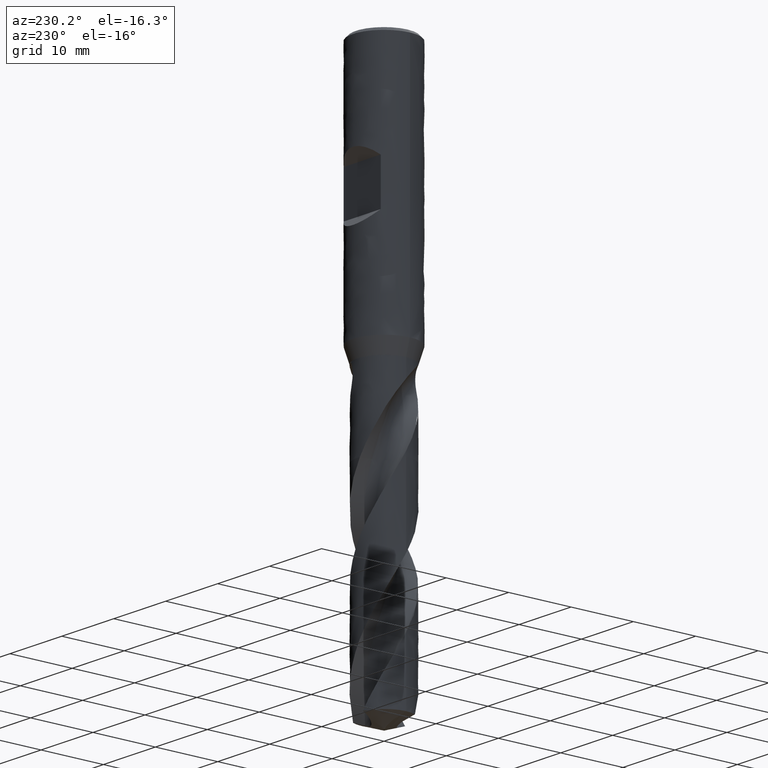
[diagram: clean part render]
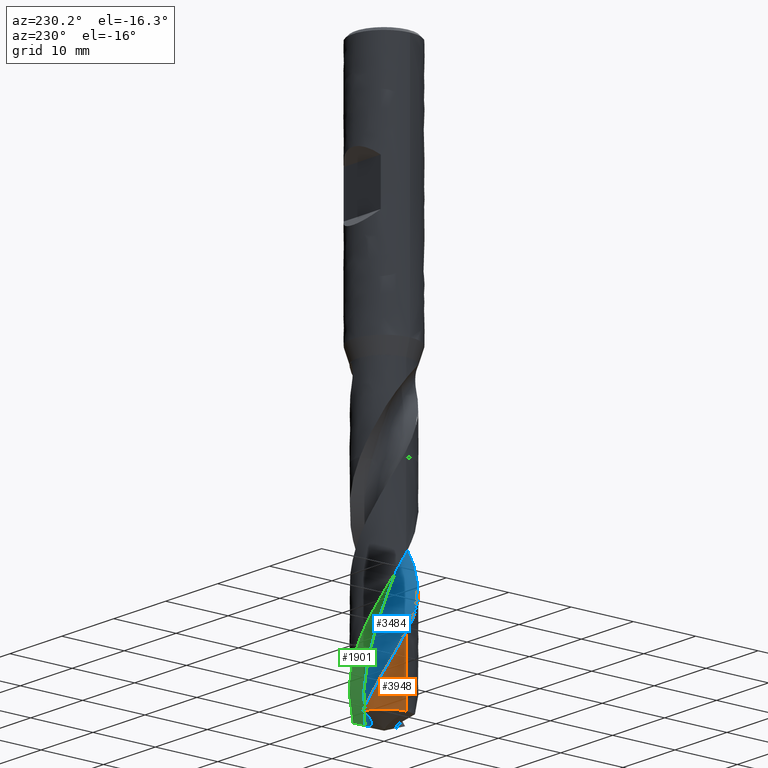
[diagram: same view with three faces highlighted in distinct colors, each labeled with its STEP entity id]
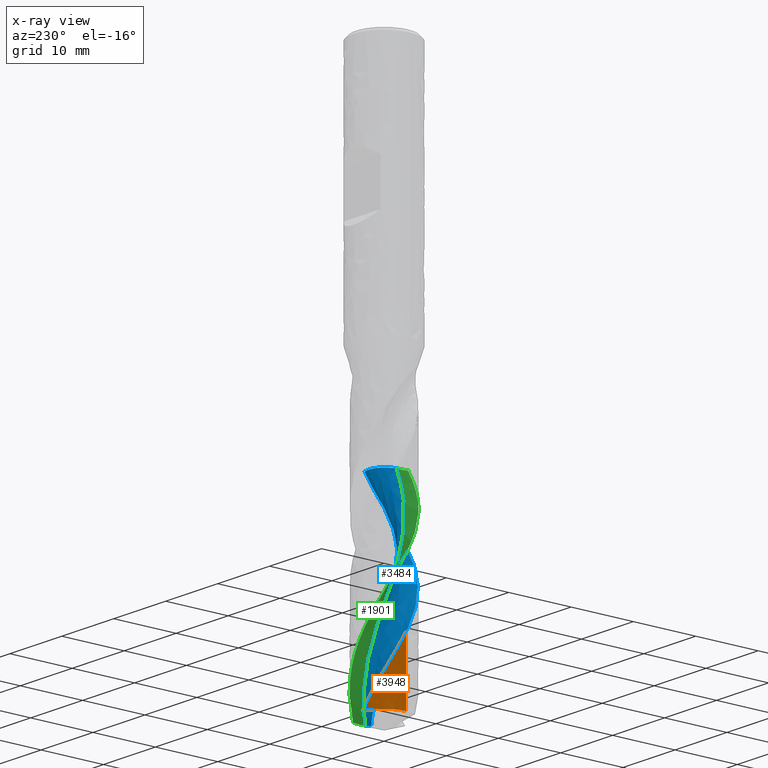
[diagram: x-ray of the same camera — body ghosted, the three highlighted faces saturated]
A machine part, auxiliary view with three faces highlighted in distinct colors.
The next image is the same camera in x-ray (body ghosted, the three faces saturated) — at least one of them is partly hidden behind the body in this view.
Their STEP definitions:

[orange] entity #3948 — the highlighted face is a freeform B-spline surface patch.
#3331 = VERTEX_POINT('', #3332);
#3332 = CARTESIAN_POINT('', (-4.25, 4.99455130866008E-15, -77.3172128835429));
#3450 = EDGE_CURVE('', #3331, #3451, #3453, .T.);
#3451 = VERTEX_POINT('', #3452);
#3452 = CARTESIAN_POINT('', (-4.25, 5.61519701726899E-15, -87.4531265043686));
#3453 = LINE('', #3454, #3455);
#3454 = CARTESIAN_POINT('', (-4.25, 4.99455130866008E-15, -77.3172128835429));
#3455 = VECTOR('', #3456, 10.1359136208257);
#3456 = DIRECTION('', (0., 6.20645708608913E-16, -10.1359136208257));
#3491 = VERTEX_POINT('', #3492);
#3492 = CARTESIAN_POINT('', (-0.912177127817301, 4.15095565954239, -87.4531265043686));
#3616 = EDGE_CURVE('', #3617, #3491, #3619, .T.);
#3617 = VERTEX_POINT('', #3618);
#3618 = CARTESIAN_POINT('', (-1.68817447602326, 3.90032908079609, -86.0117087814911));
#3619 = B_SPLINE_CURVE_WITH_KNOTS('', 3, (#3620, #3621, #3622, #3623, #3624, #3625, #3626), .UNSPECIFIED., .F., .U., (4, 3, 4), (0., 0.996006160757374, 1.65654599937346), .UNSPECIFIED.);
#3620 = CARTESIAN_POINT('', (-1.68817447602325, 3.90032908079609, -86.0117087814912));
#3621 = CARTESIAN_POINT('', (-1.53793721185733, 3.96535608478948, -86.3005437114992));
#3622 = CARTESIAN_POINT('', (-1.38389840683577, 4.021704904012, -86.5895093947658));
#3623 = CARTESIAN_POINT('', (-1.22720824319065, 4.06896300399069, -86.8783696173449));
#3624 = CARTESIAN_POINT('', (-1.1232931275169, 4.1003040327545, -87.06993839706));
#3625 = CARTESIAN_POINT('', (-1.01816796320345, 4.12766405545714, -87.2615471403853));
#3626 = CARTESIAN_POINT('', (-0.912177127817299, 4.15095565954239, -87.4531265043686));
#3920 = EDGE_CURVE('', #3451, #3491, #3921, .T.);
#3921 = CIRCLE('', #3922, 4.25);
#3922 = AXIS2_PLACEMENT_3D('', #3923, #3924, #3925);
#3923 = CARTESIAN_POINT('', (3.2789670499823E-31, 5.35495957245018E-15, -87.4531265043686));
#3924 = DIRECTION('', (3.74939945665464E-33, 6.12323399573677E-17, -1.));
#3925 = DIRECTION('', (-1., 6.12323399573677E-17, 0.));
#3948 = ADVANCED_FACE('', (#3949), #3997, .T.);
#3949 = FACE_OUTER_BOUND('', #3950, .T.);
#3950 = EDGE_LOOP('', (#3951, #3952, #3953, #3954));
#3951 = ORIENTED_EDGE('', *, *, #3616, .T.);
#3952 = ORIENTED_EDGE('', *, *, #3920, .F.);
#3953 = ORIENTED_EDGE('', *, *, #3450, .F.);
#3954 = ORIENTED_EDGE('', *, *, #3955, .F.);
#3955 = EDGE_CURVE('', #3617, #3331, #3956, .T.);
#3956 = B_SPLINE_CURVE_WITH_KNOTS('', 3, (#3957, #3958, #3959, #3960, #3961, #3962, #3963, #3964, #3965, #3966, #3967, #3968, #3969, #3970, #3971, #3972, #3973, #3974, #3975, #3976, #3977, #3978, #3979, #3980, #3981, #3982, #3983, #3984, #3985, #3986, #3987, #3988, #3989, #3990, #3991, #3992, #3993, #3994, #3995, #3996), .UNSPECIFIED., .F., .U., (4, 3, 3, 3, 3, 3, 3, 3, 3, 3, 3, 3, 3, 4), (0., 0.998659903054607, 1.99689896207611, 2.99472552698934, 3.9921447847736, 4.65698398979154, 5.32170237734091, 5.98629919378277, 6.65077379233985, 7.31512492226253, 7.97935056405163, 8.64344855789552, 9.30741659907499, 9.99890429718893), .UNSPECIFIED.);
#3957 = CARTESIAN_POINT('', (-1.68817447602326, 3.90032908079609, -86.0117087814911));
#3958 = CARTESIAN_POINT('', (-1.83881202986432, 3.83512881993165, -85.7221042844855));
#3959 = CARTESIAN_POINT('', (-1.98575424831955, 3.76114909687601, -85.432398242106));
#3960 = CARTESIAN_POINT('', (-2.12789319615086, 3.678936061659, -85.1428277883651));
#3961 = CARTESIAN_POINT('', (-2.26997224538418, 3.59675767173536, -84.8533793621505));
#3962 = CARTESIAN_POINT('', (-2.40736685873886, 3.50628638527111, -84.5638299577612));
#3963 = CARTESIAN_POINT('', (-2.53903798477229, 3.4081939662941, -84.2744155017506));
#3964 = CARTESIAN_POINT('', (-2.67065470143031, 3.31014208123983, -83.985120638093));
#3965 = CARTESIAN_POINT('', (-2.79666063343277, 3.20439481896463, -83.6957252441271));
#3966 = CARTESIAN_POINT('', (-2.91610033257251, 3.09174042415765, -83.4064644690378));
#3967 = CARTESIAN_POINT('', (-3.03549127710635, 2.97913201423393, -83.1173217685518));
#3968 = CARTESIAN_POINT('', (-3.14841985687086, 2.85952915796414, -82.8280785540291));
#3969 = CARTESIAN_POINT('', (-3.25402820914732, 2.73382523473493, -82.5389700061085));
#3970 = CARTESIAN_POINT('', (-3.32442245151107, 2.65003610019085, -82.3462619792047));
#3971 = CARTESIAN_POINT('', (-3.39159997638837, 2.56349983916613, -82.1535270116002));
#3972 = CARTESIAN_POINT('', (-3.45533248057268, 2.47450549579093, -81.9608341813849));
#3973 = CARTESIAN_POINT('', (-3.51905340300945, 2.38552732485441, -81.7681763681478));
#3974 = CARTESIAN_POINT('', (-3.57935412514693, 2.29405916341818, -81.575490948774));
#3975 = CARTESIAN_POINT('', (-3.63603070417466, 2.2004046714864, -81.3828485199287));
#3976 = CARTESIAN_POINT('', (-3.6926969175579, 2.10676730813195, -81.190241323678));
#3977 = CARTESIAN_POINT('', (-3.7457600933932, 2.01091175963836, -80.9976060777511));
#3978 = CARTESIAN_POINT('', (-3.79504075356635, 1.91315594732123, -80.8050138523268));
#3979 = CARTESIAN_POINT('', (-3.84431235113507, 1.81541811208179, -80.612457044187));
#3980 = CARTESIAN_POINT('', (-3.88982049514964, 1.71574550177768, -80.4198728691477));
#3981 = CARTESIAN_POINT('', (-3.93140969567772, 1.61447137005624, -80.2273309574277));
#3982 = CARTESIAN_POINT('', (-3.97299116835313, 1.51321605647889, -80.0348248226764));
#3983 = CARTESIAN_POINT('', (-4.01067082072844, 1.41032162962647, -79.842291594427));
#3984 = CARTESIAN_POINT('', (-4.04431913140946, 1.30613275103088, -79.649800716514));
#3985 = CARTESIAN_POINT('', (-4.0779610863194, 1.201963552492, -79.4573461978694));
#3986 = CARTESIAN_POINT('', (-4.10758551477272, 1.09646254212485, -79.2648637929053));
#3987 = CARTESIAN_POINT('', (-4.13309060879929, 0.989980817720881, -79.0724245106685));
#3988 = CARTESIAN_POINT('', (-4.15859080136973, 0.883519556503621, -78.8800222105617));
#3989 = CARTESIAN_POINT('', (-4.17998215189508, 0.77604071938358, -78.6875919030559));
#3990 = CARTESIAN_POINT('', (-4.19719027625448, 0.667902526507583, -78.495204489889));
#3991 = CARTESIAN_POINT('', (-4.21439503327708, 0.55978549443379, -78.3028547236615));
#3992 = CARTESIAN_POINT('', (-4.2274244198973, 0.450969844690453, -78.1104776627323));
#3993 = CARTESIAN_POINT('', (-4.23623162391577, 0.341821047533054, -77.9181427930573));
#3994 = CARTESIAN_POINT('', (-4.24540386242101, 0.228148331653231, -77.7178361697711));
#3995 = CARTESIAN_POINT('', (-4.25, 0.114071220751721, -77.5175029637346));
#3996 = CARTESIAN_POINT('', (-4.25, 2.48961060934957E-15, -77.3172128835429));
#3997 = (
   BOUNDED_SURFACE ()
   B_SPLINE_SURFACE (2, 1, ((#3998, #3999), (#4000, #4001), (#4002, #4003)), .UNSPECIFIED., .F., .F., .U.)
   B_SPLINE_SURFACE_WITH_KNOTS ((3, 3), (2, 2), (0., 5.69488613545001), (0.777002939064016, 1.), .UNSPECIFIED.)
   GEOMETRIC_REPRESENTATION_ITEM ()
   RATIONAL_B_SPLINE_SURFACE (((1., 1.), (0.750146432468655, 0.750146432468655), (0.926569754931822, 0.926569754931822)))
   REPRESENTATION_ITEM ('')
   SURFACE ()
);
#3998 = CARTESIAN_POINT('', (-4.25, 4.99455130866008E-15, -77.3172128835429));
#3999 = CARTESIAN_POINT('', (-4.25, 5.61519701726899E-15, -87.4531265043686));
#4000 = CARTESIAN_POINT('', (-4.25, 3.41746536708137, -77.3172128835429));
#4001 = CARTESIAN_POINT('', (-4.25, 3.41746536708137, -87.4531265043686));
#4002 = CARTESIAN_POINT('', (-0.912177127817299, 4.15095565954239, -77.3172128835429));
#4003 = CARTESIAN_POINT('', (-0.912177127817299, 4.15095565954239, -87.4531265043686));

[blue] entity #3484 — the highlighted face is a freeform B-spline surface patch.
#1848 = VERTEX_POINT('', #1849);
#1849 = CARTESIAN_POINT('', (0.609771048206674, -2.47031927261728, -54.75));
#1855 = EDGE_CURVE('', #1848, #1856, #1858, .T.);
#1856 = VERTEX_POINT('', #1857);
#1857 = CARTESIAN_POINT('', (4.22936375687884, -0.418308751999922, -54.75));
#1858 = CIRCLE('', #1859, 2.55009796873265);
#1859 = AXIS2_PLACEMENT_3D('', #1860, #1861, #1862);
#1860 = CARTESIAN_POINT('', (3.1468918195684, -2.72726048029877, -54.75));
#1861 = DIRECTION('', (0., 0., -1.));
#1862 = DIRECTION('', (-0.994911026401606, 0.1007573796032, 0.));
#2108 = VERTEX_POINT('', #2109);
#2109 = CARTESIAN_POINT('', (2.26380303835024, 1.16182508416147, -88.0738661903019));
#2140 = EDGE_CURVE('', #2108, #1848, #2141, .T.);
#2141 = (
   BOUNDED_CURVE ()
   B_SPLINE_CURVE (3, (#2142, #2143, #2144, #2145, #2146, #2147, #2148, #2149, #2150, #2151, #2152, #2153, #2154, #2155, #2156, #2157, #2158, #2159, #2160, #2161, #2162, #2163, #2164, #2165, #2166, #2167, #2168, #2169, #2170, #2171, #2172, #2173, #2174, #2175, #2176, #2177, #2178, #2179, #2180, #2181, #2182, #2183, #2184, #2185, #2186, #2187), .UNSPECIFIED., .F., .U.)
   B_SPLINE_CURVE_WITH_KNOTS ((4, 1, 1, 1, 1, 1, 1, 1, 1, 1, 1, 1, 1, 1, 1, 1, 1, 1, 1, 1, 1, 1, 1, 1, 1, 1, 1, 1, 1, 1, 1, 1, 1, 1, 1, 1, 1, 1, 1, 1, 1, 1, 1, 4), (0.97613380969807, 1.569, 2.3535, 3.138, 3.9225, 4.707, 5.4915, 6.276, 7.0605, 7.845, 8.6295, 9.414, 10.1985, 10.983, 11.7675, 12.552, 13.3365, 14.121, 14.9055, 15.69, 16.4745, 17.259, 18.0435, 18.828, 19.6125, 20.397, 21.1815, 21.966, 22.7505, 23.535, 24.3195, 25.104, 25.8885, 26.673, 27.4575, 28.242, 29.0265, 29.811, 30.5955, 31.38, 32.1645, 32.949, 33.7335, 34.3), .UNSPECIFIED.)
   CURVE ()
   GEOMETRIC_REPRESENTATION_ITEM ()
   RATIONAL_B_SPLINE_CURVE ((1., 1., 1., 1., 1., 1., 1., 1., 1., 1., 1., 1., 1., 1., 1., 1., 1., 1., 1., 1., 1., 1., 1., 1., 1., 1., 1., 1., 1., 1., 1., 1., 1., 1., 1., 1., 1., 1., 1., 1., 1., 1., 1., 1., 1., 1.))
   REPRESENTATION_ITEM ('')
);
#2142 = CARTESIAN_POINT('', (2.26380303835024, 1.16182508416147, -88.0738661903019));
#2143 = CARTESIAN_POINT('', (2.23142068961664, 1.22119587362534, -87.8762441268679));
#2144 = CARTESIAN_POINT('', (2.1508328886185, 1.35602633175028, -87.417122063434));
#2145 = CARTESIAN_POINT('', (2.00574545727001, 1.55484478241772, -86.6965));
#2146 = CARTESIAN_POINT('', (1.82655988965839, 1.75317164876887, -85.912));
#2147 = CARTESIAN_POINT('', (1.62816066058167, 1.93134024572589, -85.1275));
#2148 = CARTESIAN_POINT('', (1.41276738776557, 2.08753245917842, -84.343));
#2149 = CARTESIAN_POINT('', (1.1827659386154, 2.22016851800745, -83.5585));
#2150 = CARTESIAN_POINT('', (0.940684822806402, 2.32792293648548, -82.774));
#2151 = CARTESIAN_POINT('', (0.689168234466099, 2.40973655363446, -81.9895));
#2152 = CARTESIAN_POINT('', (0.430948643944997, 2.46482621022016, -81.205));
#2153 = CARTESIAN_POINT('', (0.168818502844098, 2.49269154773007, -80.4205));
#2154 = CARTESIAN_POINT('', (-0.0943984732778758, 2.49311899778279, -79.636));
#2155 = CARTESIAN_POINT('', (-0.355876217767335, 2.46618290732512, -78.8515));
#2156 = CARTESIAN_POINT('', (-0.612815130287352, 2.41224381140495, -78.067));
#2157 = CARTESIAN_POINT('', (-0.862470527458267, 2.33194388071674, -77.2825));
#2158 = CARTESIAN_POINT('', (-1.10218045562416, 2.22619959968889, -76.498));
#2159 = CARTESIAN_POINT('', (-1.32939260302138, 2.09619175516202, -75.7135));
#2160 = CARTESIAN_POINT('', (-1.54169005766552, 1.94335284012039, -74.929));
#2161 = CARTESIAN_POINT('', (-1.73681566887196, 1.76935200006063, -74.1445));
#2162 = CARTESIAN_POINT('', (-1.91269478384159, 1.57607767156672, -73.36));
#2163 = CARTESIAN_POINT('', (-2.06745614620208, 1.36561808325012, -72.5755));
#2164 = CARTESIAN_POINT('', (-2.19945076062397, 1.14023980827892, -71.791));
#2165 = CARTESIAN_POINT('', (-2.30726854649714, 0.902364575106401, -71.0065));
#2166 = CARTESIAN_POINT('', (-2.38975262399918, 0.654544558588787, -70.222));
#2167 = CARTESIAN_POINT('', (-2.44601109754957, 0.399436387335004, -69.4375));
#2168 = CARTESIAN_POINT('', (-2.475426224449, 0.139774114751448, -68.653));
#2169 = CARTESIAN_POINT('', (-2.47766088027157, -0.121658589256765, -67.8685));
#2170 = CARTESIAN_POINT('', (-2.45266225712104, -0.382056761667237, -67.084));
#2171 = CARTESIAN_POINT('', (-2.40066275598801, -0.638622715504346, -66.2995));
#2172 = CARTESIAN_POINT('', (-2.32217805995706, -0.888594582748882, -65.515));
#2173 = CARTESIAN_POINT('', (-2.2180024007019, -1.12927455856321, -64.7305));
#2174 = CARTESIAN_POINT('', (-2.08920105640166, -1.35805657632008, -63.946));
#2175 = CARTESIAN_POINT('', (-1.93710014458426, -1.57245314731946, -63.1615));
#2176 = CARTESIAN_POINT('', (-1.76327379870978, -1.77012110529847, -62.377));
#2177 = CARTESIAN_POINT('', (-1.56952884062256, -1.94888600620909, -61.5925));
#2178 = CARTESIAN_POINT('', (-1.35788708854661, -2.10676493939415, -60.808));
#2179 = CARTESIAN_POINT('', (-1.13056544790707, -2.24198754003368, -60.0235));
#2180 = CARTESIAN_POINT('', (-0.889954009195336, -2.35301493180614, -59.239));
#2181 = CARTESIAN_POINT('', (-0.638592189307602, -2.43855663080162, -58.4545));
#2182 = CARTESIAN_POINT('', (-0.379143746090853, -2.49758439821549, -57.67));
#2183 = CARTESIAN_POINT('', (-0.114368619942707, -2.52934601630863, -56.8855));
#2184 = CARTESIAN_POINT('', (0.152899634467705, -2.53336718308083, -56.101));
#2185 = CARTESIAN_POINT('', (0.395079673093268, -2.51169714520767, -55.3891666666667));
#2186 = CARTESIAN_POINT('', (0.54666408360814, -2.48422088340201, -54.9388333333333));
#2187 = CARTESIAN_POINT('', (0.609771048206675, -2.47031927261728, -54.75));
#3312 = EDGE_CURVE('', #1856, #3313, #3315, .T.);
#3313 = VERTEX_POINT('', #3314);
#3314 = CARTESIAN_POINT('', (3.95116373576819, -1.56550475347421, -56.8051964234721));
#3315 = B_SPLINE_CURVE_WITH_KNOTS('', 3, (#3316, #3317, #3318, #3319, #3320, #3321, #3322, #3323, #3324, #3325, #3326, #3327, #3328), .UNSPECIFIED., .F., .U., (4, 3, 3, 3, 4), (5.11753710972845, 5.64862569538437, 6.31465294935768, 6.98053721695193, 7.48938595604523), .UNSPECIFIED.);
#3316 = CARTESIAN_POINT('', (4.22936375687884, -0.418308751999922, -54.75));
#3317 = CARTESIAN_POINT('', (4.22066137040157, -0.506295335568461, -54.9033691088873));
#3318 = CARTESIAN_POINT('', (4.2092112570088, -0.594015733908753, -55.0567787316896));
#3319 = CARTESIAN_POINT('', (4.19504125936249, -0.681270014197829, -55.2101585077921));
#3320 = CARTESIAN_POINT('', (4.1772709572395, -0.790693809526772, -55.4025089251269));
#3321 = CARTESIAN_POINT('', (4.15521324597634, -0.899438504136208, -55.5948984064115));
#3322 = CARTESIAN_POINT('', (4.12894605614196, -1.00712683683285, -55.7872556038589));
#3323 = CARTESIAN_POINT('', (4.10268450549179, -1.11479205040837, -55.9795715050095));
#3324 = CARTESIAN_POINT('', (4.07220562135653, -1.22144111355231, -56.1719291513775));
#3325 = CARTESIAN_POINT('', (4.03761709090543, -1.32670578020446, -56.3642566236949));
#3326 = CARTESIAN_POINT('', (4.01118557575532, -1.40714587393207, -56.511227496179));
#3327 = CARTESIAN_POINT('', (3.98234823304885, -1.48679847391802, -56.6582184668987));
#3328 = CARTESIAN_POINT('', (3.95116373576817, -1.56550475347425, -56.8051964234722));
#3484 = ADVANCED_FACE('', (#3485), #3673, .T.);
#3485 = FACE_OUTER_BOUND('', #3486, .T.);
#3486 = EDGE_LOOP('', (#3487, #3488, #3489, #3615, #3627, #3672));
#3487 = ORIENTED_EDGE('', *, *, #1855, .F.);
#3488 = ORIENTED_EDGE('', *, *, #2140, .F.);
#3489 = ORIENTED_EDGE('', *, *, #3490, .T.);
#3490 = EDGE_CURVE('', #2108, #3491, #3493, .T.);
#3491 = VERTEX_POINT('', #3492);
#3492 = CARTESIAN_POINT('', (-0.912177127817301, 4.15095565954239, -87.4531265043686));
#3493 = B_SPLINE_CURVE_WITH_KNOTS('', 3, (#3494, #3495, #3496, #3497, #3498, #3499, #3500, #3501, #3502, #3503, #3504, #3505, #3506, #3507, #3508, #3509, #3510, #3511, #3512, #3513, #3514, #3515, #3516, #3517, #3518, #3519, #3520, #3521, #3522, #3523, #3524, #3525, #3526, #3527, #3528, #3529, #3530, #3531, #3532, #3533, #3534, #3535, #3536, #3537, #3538, #3539, #3540, #3541, #3542, #3543, #3544, #3545, #3546, #3547, #3548, #3549, #3550, #3551, #3552, #3553, #3554, #3555, #3556, #3557, #3558, #3559, #3560, #3561, #3562, #3563, #3564, #3565, #3566, #3567, #3568, #3569, #3570, #3571, #3572, #3573, #3574, #3575, #3576, #3577, #3578, #3579, #3580, #3581, #3582, #3583, #3584, #3585, #3586, #3587, #3588, #3589, #3590, #3591, #3592, #3593, #3594, #3595, #3596, #3597, #3598, #3599, #3600, #3601, #3602, #3603, #3604, #3605, #3606, #3607, #3608, #3609, #3610, #3611, #3612, #3613, #3614), .UNSPECIFIED., .F., .U., (4, 3, 3, 3, 3, 3, 3, 3, 3, 3, 3, 3, 3, 3, 3, 3, 3, 3, 3, 3, 3, 3, 3, 3, 3, 3, 3, 3, 3, 3, 3, 3, 3, 3, 3, 3, 3, 3, 3, 3, 4), (0., 0.197366025399321, 0.394449027620821, 0.525647714904353, 0.656700994513001, 0.787594218033577, 0.918326714190029, 1.04891924890005, 1.13611810537001, 1.22330766687048, 1.3105042797026, 1.39772468510196, 1.48498398464566, 1.57229369632771, 1.65966037729865, 1.74708513791573, 1.83456409160007, 1.92208951074192, 2.0096513106843, 2.14101325832229, 2.2724181064271, 2.40382091581938, 2.46221249323579, 2.48816889858686, 2.62018432272414, 2.65917347359251, 2.79150483025303, 2.9236328653396, 3.0555854902682, 3.1873870617791, 3.31905827162439, 3.45061640190552, 3.64785589306713, 3.84481359675958, 4.04153240847809, 4.23804343437635, 4.43436884298918, 4.63052395768663, 4.82651875750547, 5.02235893031434, 5.07117728515767), .UNSPECIFIED.);
#3494 = CARTESIAN_POINT('', (2.26380303835024, 1.16182508416148, -88.0738661903019));
#3495 = CARTESIAN_POINT('', (2.20364025956441, 1.14680592418442, -88.095843784759));
#3496 = CARTESIAN_POINT('', (2.14256045724465, 1.13476713195632, -88.1175842762805));
#3497 = CARTESIAN_POINT('', (2.0809403069956, 1.12588304156369, -88.1388487959541));
#3498 = CARTESIAN_POINT('', (2.01940852013486, 1.11701169097007, -88.1600828222745));
#3499 = CARTESIAN_POINT('', (1.95719004215308, 1.11126592512355, -88.1808939345037));
#3500 = CARTESIAN_POINT('', (1.89469287023404, 1.1087734310825, -88.2009846414345));
#3501 = CARTESIAN_POINT('', (1.85308833396107, 1.1071141710623, -88.2143590793425));
#3502 = CARTESIAN_POINT('', (1.81130206306737, 1.10689241236628, -88.2274321202993));
#3503 = CARTESIAN_POINT('', (1.76946220325849, 1.1081305512607, -88.2400993739444));
#3504 = CARTESIAN_POINT('', (1.72766871462038, 1.10936731792418, -88.2527525884559));
#3505 = CARTESIAN_POINT('', (1.6857717267647, 1.1120625093951, -88.2650159806266));
#3506 = CARTESIAN_POINT('', (1.64390508044746, 1.11622261818504, -88.2767721085096));
#3507 = CARTESIAN_POINT('', (1.60208956609463, 1.12037764621134, -88.2885138785692));
#3508 = CARTESIAN_POINT('', (1.56025190195305, 1.12599955715365, -88.2997640845704));
#3509 = CARTESIAN_POINT('', (1.51853133966271, 1.13307497189404, -88.3103944115198));
#3510 = CARTESIAN_POINT('', (1.47686200719028, 1.14014169853941, -88.3210116852005));
#3511 = CARTESIAN_POINT('', (1.43525490362908, 1.14866797737316, -88.3310240033849));
#3512 = CARTESIAN_POINT('', (1.39385399005691, 1.15861605787251, -88.3402975380054));
#3513 = CARTESIAN_POINT('', (1.35249740006088, 1.16855348801501, -88.3495611444338));
#3514 = CARTESIAN_POINT('', (1.3112902645507, 1.17992351934458, -88.3580993719568));
#3515 = CARTESIAN_POINT('', (1.27037947431074, 1.19265981648163, -88.3657823684541));
#3516 = CARTESIAN_POINT('', (1.2430626438799, 1.20116405869179, -88.3709124358834));
#3517 = CARTESIAN_POINT('', (1.21585660453625, 1.21028324324796, -88.3756654152435));
#3518 = CARTESIAN_POINT('', (1.18880509477072, 1.21998990858315, -88.3800065463935));
#3519 = CARTESIAN_POINT('', (1.16175646856317, 1.22969553923552, -88.3843472148003));
#3520 = CARTESIAN_POINT('', (1.13484521771277, 1.23999466663396, -88.3882787364174));
#3521 = CARTESIAN_POINT('', (1.10811419649058, 1.25085374087682, -88.3917718524047));
#3522 = CARTESIAN_POINT('', (1.0813810134351, 1.26171369333185, -88.3952652508927));
#3523 = CARTESIAN_POINT('', (1.054811192221, 1.27314051441188, -88.3983222651653));
#3524 = CARTESIAN_POINT('', (1.02844572310687, 1.28509515695409, -88.4009211181199));
#3525 = CARTESIAN_POINT('', (1.00207305988076, 1.2970530614537, -88.4035206802004));
#3526 = CARTESIAN_POINT('', (0.975888445213804, 1.30954645245562, -88.4056633729035));
#3527 = CARTESIAN_POINT('', (0.949929913660226, 1.32253190375399, -88.4073364726702));
#3528 = CARTESIAN_POINT('', (0.923959806433863, 1.33552314564706, -88.4090103185213));
#3529 = CARTESIAN_POINT('', (0.898200321957909, 1.34901462593837, -88.4102151423743));
#3530 = CARTESIAN_POINT('', (0.872685490566781, 1.36296011613003, -88.4109481346001));
#3531 = CARTESIAN_POINT('', (0.847155918543801, 1.37691366302148, -88.4116815502961));
#3532 = CARTESIAN_POINT('', (0.82185662857401, 1.39132963781636, -88.411943053111));
#3533 = CARTESIAN_POINT('', (0.796816821709417, 1.40616085968333, -88.4117397129329));
#3534 = CARTESIAN_POINT('', (0.771760676456307, 1.42100175887195, -88.411536240076));
#3535 = CARTESIAN_POINT('', (0.746950915801598, 1.43626628274943, -88.4108673075532));
#3536 = CARTESIAN_POINT('', (0.722411458213135, 1.45190816177703, -88.4097489397135));
#3537 = CARTESIAN_POINT('', (0.697855687277324, 1.46756043921727, -88.4086298284049));
#3538 = CARTESIAN_POINT('', (0.67355849526038, 1.48359815844171, -88.4070602715032));
#3539 = CARTESIAN_POINT('', (0.649538503031792, 1.49997758021663, -88.4050636240389));
#3540 = CARTESIAN_POINT('', (0.625503621233644, 1.51636715530624, -88.4030657388879));
#3541 = CARTESIAN_POINT('', (0.601735607045788, 1.5331060353792, -88.4006395010137));
#3542 = CARTESIAN_POINT('', (0.578248174791807, 1.55015420192174, -88.3978135846318));
#3543 = CARTESIAN_POINT('', (0.55474826691667, 1.56721142379502, -88.3949861672317));
#3544 = CARTESIAN_POINT('', (0.53151994522714, 1.58458492739665, -88.3917576793495));
#3545 = CARTESIAN_POINT('', (0.508572705322358, 1.60223910485033, -88.3881600444994));
#3546 = CARTESIAN_POINT('', (0.485615927171819, 1.61990062043634, -88.384560914257));
#3547 = CARTESIAN_POINT('', (0.46293246252325, 1.63784914346505, -88.3805912075343));
#3548 = CARTESIAN_POINT('', (0.440528430709032, 1.65605369920135, -88.3762842314185));
#3549 = CARTESIAN_POINT('', (0.406917458161689, 1.68336453450829, -88.3698228204909));
#3550 = CARTESIAN_POINT('', (0.373917146746479, 1.71126591258139, -88.3625990693212));
#3551 = CARTESIAN_POINT('', (0.341538057356757, 1.73967204263021, -88.3547240850128));
#3552 = CARTESIAN_POINT('', (0.309148393534526, 1.76808744961396, -88.3468465288751));
#3553 = CARTESIAN_POINT('', (0.27736191093297, 1.79702403538555, -88.338313312318));
#3554 = CARTESIAN_POINT('', (0.24618219389214, 1.82641545402602, -88.3292275364663));
#3555 = CARTESIAN_POINT('', (0.215002960596622, 1.85580641666616, -88.3201419015782));
#3556 = CARTESIAN_POINT('', (0.184415832277956, 1.8856660233077, -88.3104996888499));
#3557 = CARTESIAN_POINT('', (0.154421668277751, 1.91594329872284, -88.3003923274486));
#3558 = CARTESIAN_POINT('', (0.141093136282442, 1.92939763717676, -88.2959009107242));
#3559 = CARTESIAN_POINT('', (0.127879946903131, 1.94293634183751, -88.2913169177426));
#3560 = CARTESIAN_POINT('', (0.114782156422942, 1.95655570062862, -88.2866475748305));
#3561 = CARTESIAN_POINT('', (0.108959885918368, 1.96260982029871, -88.2845719440167));
#3562 = CARTESIAN_POINT('', (0.103160282424897, 1.96868002315184, -88.2824793937368));
#3563 = CARTESIAN_POINT('', (0.0973833528081606, 1.97476600797723, -88.2803705279299));
#3564 = CARTESIAN_POINT('', (0.0680016336043776, 2.00571959562353, -88.2696447432851));
#3565 = CARTESIAN_POINT('', (0.039200356696251, 2.03708721265977, -88.2584956027577));
#3566 = CARTESIAN_POINT('', (0.0109813252912508, 2.06883435469464, -88.2469952676767));
#3567 = CARTESIAN_POINT('', (0.00264717736877318, 2.07821048720738, -88.2435987834974));
#3568 = CARTESIAN_POINT('', (-0.00563669435814829, 2.08762034803726, -88.2401713831555));
#3569 = CARTESIAN_POINT('', (-0.0138702090038509, 2.09706316525569, -88.2367147335017));
#3570 = CARTESIAN_POINT('', (-0.0418152177789479, 2.12911261453535, -88.2249826714281));
#3571 = CARTESIAN_POINT('', (-0.0691856586804946, 2.16154759055635, -88.2129121252478));
#3572 = CARTESIAN_POINT('', (-0.0959767414207118, 2.19434136117616, -88.2005614779284));
#3573 = CARTESIAN_POINT('', (-0.122726660787046, 2.22708474554417, -88.18822980686));
#3574 = CARTESIAN_POINT('', (-0.148906492079558, 2.26019508458716, -88.1756153414878));
#3575 = CARTESIAN_POINT('', (-0.174508755272963, 2.29364957846097, -88.1627670545849));
#3576 = CARTESIAN_POINT('', (-0.20007702948721, 2.32705965891372, -88.149935824774));
#3577 = CARTESIAN_POINT('', (-0.225075954928681, 2.36082179919754, -88.1368679395696));
#3578 = CARTESIAN_POINT('', (-0.249495342891935, 2.39491563219598, -88.123604658543));
#3579 = CARTESIAN_POINT('', (-0.273886776640467, 2.42897043611107, -88.1103565607227));
#3580 = CARTESIAN_POINT('', (-0.297706099165052, 2.46336476007656, -88.0969101114049));
#3581 = CARTESIAN_POINT('', (-0.320940528930972, 2.49807958759837, -88.0833003417726));
#3582 = CARTESIAN_POINT('', (-0.344151978098642, 2.53276007954523, -88.069704033226));
#3583 = CARTESIAN_POINT('', (-0.366785352719878, 2.56776896077836, -88.0559413329079));
#3584 = CARTESIAN_POINT('', (-0.38882544648829, 2.60308777239985, -88.0420422929209));
#3585 = CARTESIAN_POINT('', (-0.410846612169079, 2.63837625213764, -88.0281551894641));
#3586 = CARTESIAN_POINT('', (-0.432280839288923, 2.67398271423634, -88.0141285566669));
#3587 = CARTESIAN_POINT('', (-0.453110674439788, 2.70988865909712, -87.9999884974802));
#3588 = CARTESIAN_POINT('', (-0.484339957475032, 2.76372091012473, -87.978788910096));
#3589 = CARTESIAN_POINT('', (-0.514225226566719, 2.81825132586832, -87.9573251138249));
#3590 = CARTESIAN_POINT('', (-0.542698805602477, 2.87341497050274, -87.9356726432408));
#3591 = CARTESIAN_POINT('', (-0.57113170567619, 2.92849980524102, -87.9140511065982));
#3592 = CARTESIAN_POINT('', (-0.598172838137224, 2.98424718760483, -87.8922290098905));
#3593 = CARTESIAN_POINT('', (-0.623745214329975, 3.04058684661928, -87.8702709573921));
#3594 = CARTESIAN_POINT('', (-0.649286573531196, 3.09685817069633, -87.8483395380357));
#3595 = CARTESIAN_POINT('', (-0.673377617544639, 3.15375346590158, -87.8262594355668));
#3596 = CARTESIAN_POINT('', (-0.69593302693554, 3.21119468865011, -87.8040880681173));
#3597 = CARTESIAN_POINT('', (-0.718464611994644, 3.2685752386471, -87.7819401193523));
#3598 = CARTESIAN_POINT('', (-0.739477667263025, 3.32653626254474, -87.7596872213616));
#3599 = CARTESIAN_POINT('', (-0.758879462879097, 3.38498964771368, -87.7373824333802));
#3600 = CARTESIAN_POINT('', (-0.778262932253073, 3.443387819906, -87.7150987137036));
#3601 = CARTESIAN_POINT('', (-0.796050901709987, 3.50231623806634, -87.6927483284885));
#3602 = CARTESIAN_POINT('', (-0.812144219046303, 3.56167438803018, -87.6703821769872));
#3603 = CARTESIAN_POINT('', (-0.828223576936209, 3.62098105035502, -87.6480354260287));
#3604 = CARTESIAN_POINT('', (-0.842622550641804, 3.68075917872105, -87.6256568935328));
#3605 = CARTESIAN_POINT('', (-0.85523676777546, 3.7408933937926, -87.6032970874402));
#3606 = CARTESIAN_POINT('', (-0.867840675482866, 3.80097846199685, -87.5809555557098));
#3607 = CARTESIAN_POINT('', (-0.87867231907562, 3.8614657406211, -87.5586153365512));
#3608 = CARTESIAN_POINT('', (-0.887623684715126, 3.9222223561571, -87.5363280156609));
#3609 = CARTESIAN_POINT('', (-0.896567988315714, 3.98293103871831, -87.5140582780013));
#3610 = CARTESIAN_POINT('', (-0.903642300560583, 4.04396013442627, -87.491822461015));
#3611 = CARTESIAN_POINT('', (-0.908737103011746, 4.105156504437, -87.4696744767695));
#3612 = CARTESIAN_POINT('', (-0.910007117587153, 4.12041132199287, -87.4641535045479));
#3613 = CARTESIAN_POINT('', (-0.911154356439053, 4.13567857118275, -87.4586372248221));
#3614 = CARTESIAN_POINT('', (-0.912177127817301, 4.15095565954239, -87.4531265043686));
#3615 = ORIENTED_EDGE('', *, *, #3616, .F.);
#3616 = EDGE_CURVE('', #3617, #3491, #3619, .T.);
#3617 = VERTEX_POINT('', #3618);
#3618 = CARTESIAN_POINT('', (-1.68817447602326, 3.90032908079609, -86.0117087814911));
#3619 = B_SPLINE_CURVE_WITH_KNOTS('', 3, (#3620, #3621, #3622, #3623, #3624, #3625, #3626), .UNSPECIFIED., .F., .U., (4, 3, 4), (0., 0.996006160757374, 1.65654599937346), .UNSPECIFIED.);
#3620 = CARTESIAN_POINT('', (-1.68817447602325, 3.90032908079609, -86.0117087814912));
#3621 = CARTESIAN_POINT('', (-1.53793721185733, 3.96535608478948, -86.3005437114992));
#3622 = CARTESIAN_POINT('', (-1.38389840683577, 4.021704904012, -86.5895093947658));
#3623 = CARTESIAN_POINT('', (-1.22720824319065, 4.06896300399069, -86.8783696173449));
#3624 = CARTESIAN_POINT('', (-1.1232931275169, 4.1003040327545, -87.06993839706));
#3625 = CARTESIAN_POINT('', (-1.01816796320345, 4.12766405545714, -87.2615471403853));
#3626 = CARTESIAN_POINT('', (-0.912177127817299, 4.15095565954239, -87.4531265043686));
#3627 = ORIENTED_EDGE('', *, *, #3628, .T.);
#3628 = EDGE_CURVE('', #3617, #3313, #3629, .T.);
#3629 = B_SPLINE_CURVE_WITH_KNOTS('', 3, (#3630, #3631, #3632, #3633, #3634, #3635, #3636, #3637, #3638, #3639, #3640, #3641, #3642, #3643, #3644, #3645, #3646, #3647, #3648, #3649, #3650, #3651, #3652, #3653, #3654, #3655, #3656, #3657, #3658, #3659, #3660, #3661, #3662, #3663, #3664, #3665, #3666, #3667, #3668, #3669, #3670, #3671), .UNSPECIFIED., .F., .U., (4, 1, 1, 1, 1, 1, 1, 1, 1, 1, 1, 1, 1, 1, 1, 1, 1, 1, 1, 1, 1, 1, 1, 1, 1, 1, 1, 1, 1, 1, 1, 1, 1, 1, 1, 1, 1, 1, 1, 4), (3.03829121850886, 3.138, 3.9225, 4.707, 5.4915, 6.276, 7.0605, 7.845, 8.6295, 9.414, 10.1985, 10.983, 11.7675, 12.552, 13.3365, 14.121, 14.9055, 15.69, 16.4745, 17.259, 18.0435, 18.828, 19.6125, 20.397, 21.1815, 21.966, 22.7505, 23.535, 24.3195, 25.104, 25.8885, 26.673, 27.4575, 28.242, 29.0265, 29.811, 30.5955, 31.38, 32.1645, 32.2448035765279), .UNSPECIFIED.);
#3630 = CARTESIAN_POINT('', (-1.68817447602325, 3.90032908079609, -86.0117087814911));
#3631 = CARTESIAN_POINT('', (-1.70543569096704, 3.8923992602671, -85.9784725209941));
#3632 = CARTESIAN_POINT('', (-1.85801721084729, 3.8210736713181, -85.6837362604971));
#3633 = CARTESIAN_POINT('', (-2.13756085856122, 3.66975632244309, -85.1275));
#3634 = CARTESIAN_POINT('', (-2.50663208663371, 3.41701156557503, -84.343));
#3635 = CARTESIAN_POINT('', (-2.84666394375166, 3.12782038137847, -83.5585));
#3636 = CARTESIAN_POINT('', (-3.15412832513476, 2.80543696346692, -82.774));
#3637 = CARTESIAN_POINT('', (-3.4258534125538, 2.45344923108577, -81.9895));
#3638 = CARTESIAN_POINT('', (-3.65905449061498, 2.07574090290597, -81.205));
#3639 = CARTESIAN_POINT('', (-3.85136070743282, 1.67645053981376, -80.4205));
#3640 = CARTESIAN_POINT('', (-4.00083762552418, 1.25992833073368, -79.636));
#3641 = CARTESIAN_POINT('', (-4.10600534821823, 0.830690949618408, -78.8515));
#3642 = CARTESIAN_POINT('', (-4.16585207572887, 0.39337495105706, -78.067));
#3643 = CARTESIAN_POINT('', (-4.17984298057051, -0.0473108505299785, -77.2825));
#3644 = CARTESIAN_POINT('', (-4.14792433736166, -0.486633557332165, -76.498));
#3645 = CARTESIAN_POINT('', (-4.07052288523978, -0.919884458990024, -75.7135));
#3646 = CARTESIAN_POINT('', (-3.94854044487707, -1.34242693711348, -74.929));
#3647 = CARTESIAN_POINT('', (-3.78334385525317, -1.74974354804749, -74.1445));
#3648 = CARTESIAN_POINT('', (-3.57675033779138, -2.13748183742902, -73.36));
#3649 = CARTESIAN_POINT('', (-3.33100843680564, -2.50149845291525, -72.5755));
#3650 = CARTESIAN_POINT('', (-3.04877472513101, -2.83790113796528, -71.791));
#3651 = CARTESIAN_POINT('', (-2.73308650200494, -3.14308820960029, -71.0065));
#3652 = CARTESIAN_POINT('', (-2.38733074643647, -3.41378514647461, -70.222));
#3653 = CARTESIAN_POINT('', (-2.01520962316309, -3.64707794017117, -69.4375));
#3654 = CARTESIAN_POINT('', (-1.62070286958701, -3.84044289217451, -68.653));
#3655 = CARTESIAN_POINT('', (-1.2080274205579, -3.99177257123854, -67.8685));
#3656 = CARTESIAN_POINT('', (-0.781594653301472, -4.09939768060059, -67.084));
#3657 = CARTESIAN_POINT('', (-0.345965656976215, -4.16210462142743, -66.2995));
#3658 = CARTESIAN_POINT('', (0.094195049903647, -4.17914857772614, -65.515));
#3659 = CARTESIAN_POINT('', (0.534166915796245, -4.15026198840504, -64.7305));
#3660 = CARTESIAN_POINT('', (0.969221416339792, -4.07565831393879, -63.946));
#3661 = CARTESIAN_POINT('', (1.39467032118577, -3.95603104775079, -63.1615));
#3662 = CARTESIAN_POINT('', (1.80591370574656, -3.79254796601251, -62.377));
#3663 = CARTESIAN_POINT('', (2.19848724938428, -3.58684065233824, -61.5925));
#3664 = CARTESIAN_POINT('', (2.56810835495118, -3.34098938066618, -60.808));
#3665 = CARTESIAN_POINT('', (2.91072067371463, -3.05750347073713, -60.0235));
#3666 = CARTESIAN_POINT('', (3.22253647973925, -2.73929731795393, -59.239));
#3667 = CARTESIAN_POINT('', (3.50007692227381, -2.38966217284827, -58.4545));
#3668 = CARTESIAN_POINT('', (3.74020808398951, -2.01223441154807, -57.67));
#3669 = CARTESIAN_POINT('', (3.88034501666053, -1.73102540287083, -57.1202321411574));
#3670 = CARTESIAN_POINT('', (3.94521467411388, -1.57959930369933, -56.8319642823148));
#3671 = CARTESIAN_POINT('', (3.95116373576819, -1.56550475347421, -56.8051964234721));
#3672 = ORIENTED_EDGE('', *, *, #3312, .F.);
#3673 = (
   BOUNDED_SURFACE ()
   B_SPLINE_SURFACE (3, 2, ((#3674, #3675, #3676, #3677, #3678), (#3679, #3680, #3681, #3682, #3683), (#3684, #3685, #3686, #3687, #3688), (#3689, #3690, #3691, #3692, #3693), (#3694, #3695, #3696, #3697, #3698), (#3699, #3700, #3701, #3702, #3703), (#3704, #3705, #3706, #3707, #3708), (#3709, #3710, #3711, #3712, #3713), (#3714, #3715, #3716, #3717, #3718), (#3719, #3720, #3721, #3722, #3723), (#3724, #3725, #3726, #3727, #3728), (#3729, #3730, #3731, #3732, #3733), (#3734, #3735, #3736, #3737, #3738), (#3739, #3740, #3741, #3742, #3743), (#3744, #3745, #3746, #3747, #3748), (#3749, #3750, #3751, #3752, #3753), (#3754, #3755, #3756, #3757, #3758), (#3759, #3760, #3761, #3762, #3763), (#3764, #3765, #3766, #3767, #3768), (#3769, #3770, #3771, #3772, #3773), (#3774, #3775, #3776, #3777, #3778), (#3779, #3780, #3781, #3782, #3783), (#3784, #3785, #3786, #3787, #3788), (#3789, #3790, #3791, #3792, #3793), (#3794, #3795, #3796, #3797, #3798), (#3799, #3800, #3801, #3802, #3803), (#3804, #3805, #3806, #3807, #3808), (#3809, #3810, #3811, #3812, #3813), (#3814, #3815, #3816, #3817, #3818), (#3819, #3820, #3821, #3822, #3823), (#3824, #3825, #3826, #3827, #3828), (#3829, #3830, #3831, #3832, #3833), (#3834, #3835, #3836, #3837, #3838), (#3839, #3840, #3841, #3842, #3843), (#3844, #3845, #3846, #3847, #3848), (#3849, #3850, #3851, #3852, #3853), (#3854, #3855, #3856, #3857, #3858), (#3859, #3860, #3861, #3862, #3863), (#3864, #3865, #3866, #3867, #3868), (#3869, #3870, #3871, #3872, #3873), (#3874, #3875, #3876, #3877, #3878), (#3879, #3880, #3881, #3882, #3883), (#3884, #3885, #3886, #3887, #3888), (#3889, #3890, #3891, #3892, #3893), (#3894, #3895, #3896, #3897, #3898), (#3899, #3900, #3901, #3902, #3903)), .UNSPECIFIED., .F., .F., .U.)
   B_SPLINE_SURFACE_WITH_KNOTS ((4, 1, 1, 1, 1, 1, 1, 1, 1, 1, 1, 1, 1, 1, 1, 1, 1, 1, 1, 1, 1, 1, 1, 1, 1, 1, 1, 1, 1, 1, 1, 1, 1, 1, 1, 1, 1, 1, 1, 1, 1, 1, 1, 4), (3, 2, 3), (0.638056946886616, 1.569, 2.3535, 3.138, 3.9225, 4.707, 5.4915, 6.276, 7.0605, 7.845, 8.6295, 9.414, 10.1985, 10.983, 11.7675, 12.552, 13.3365, 14.121, 14.9055, 15.69, 16.4745, 17.259, 18.0435, 18.828, 19.6125, 20.397, 21.1815, 21.966, 22.7505, 23.535, 24.3195, 25.104, 25.8885, 26.673, 27.4575, 28.242, 29.0265, 29.811, 30.5955, 31.38, 32.1645, 32.949, 33.7335, 34.3000000000013), (0., 0.5, 1.), .UNSPECIFIED.)
   GEOMETRIC_REPRESENTATION_ITEM ()
   RATIONAL_B_SPLINE_SURFACE (((1., 0.887010833178222, 1., 0.887010833178222, 1.), (1., 0.887010833178221, 1., 0.887010833178221, 1.), (1., 0.887010833178221, 1., 0.887010833178221, 1.), (1., 0.887010833178222, 1., 0.887010833178222, 1.), (1., 0.887010833178222, 1., 0.887010833178222, 1.), (1., 0.887010833178221, 1., 0.887010833178221, 1.), (1., 0.887010833178222, 1., 0.887010833178222, 1.), (1., 0.887010833178222, 1., 0.887010833178222, 1.), (1., 0.887010833178221, 1., 0.887010833178221, 1.), (1., 0.887010833178222, 1., 0.887010833178222, 1.), (1., 0.887010833178221, 1., 0.887010833178221, 1.), (1., 0.887010833178222, 1., 0.887010833178222, 1.), (1., 0.887010833178221, 1., 0.887010833178221, 1.), (1., 0.887010833178222, 1., 0.887010833178222, 1.), (1., 0.887010833178222, 1., 0.887010833178222, 1.), (1., 0.887010833178221, 1., 0.887010833178221, 1.), (1., 0.887010833178222, 1., 0.887010833178222, 1.), (1., 0.887010833178222, 1., 0.887010833178222, 1.), (1., 0.887010833178222, 1., 0.887010833178222, 1.), (1., 0.887010833178222, 1., 0.887010833178222, 1.), (1., 0.887010833178222, 1., 0.887010833178222, 1.), (1., 0.887010833178222, 1., 0.887010833178222, 1.), (1., 0.887010833178221, 1., 0.887010833178221, 1.), (1., 0.887010833178222, 1., 0.887010833178222, 1.), (1., 0.887010833178222, 1., 0.887010833178222, 1.), (1., 0.887010833178221, 1., 0.887010833178221, 1.), (1., 0.887010833178222, 1., 0.887010833178222, 1.), (1., 0.887010833178221, 1., 0.887010833178221, 1.), (1., 0.887010833178222, 1., 0.887010833178222, 1.), (1., 0.887010833178221, 1., 0.887010833178221, 1.), (1., 0.887010833178222, 1., 0.887010833178222, 1.), (1., 0.887010833178221, 1., 0.887010833178221, 1.), (1., 0.887010833178222, 1., 0.887010833178222, 1.), (1., 0.887010833178222, 1., 0.887010833178222, 1.), (1., 0.887010833178222, 1., 0.887010833178222, 1.), (1., 0.887010833178221, 1., 0.887010833178221, 1.), (1., 0.887010833178222, 1., 0.887010833178222, 1.), (1., 0.887010833178221, 1., 0.887010833178221, 1.), (1., 0.887010833178222, 1., 0.887010833178222, 1.), (1., 0.887010833178221, 1., 0.887010833178221, 1.), (1., 0.887010833178222, 1., 0.887010833178222, 1.), (1., 0.887010833178222, 1., 0.887010833178222, 1.), (1., 0.887010833178222, 1., 0.887010833178222, 1.), (1., 0.887010833178222, 1., 0.887010833178222, 1.), (1., 0.887010833178222, 1., 0.887010833178222, 1.), (1., 0.887010833178222, 1., 0.887010833178222, 1.)))
   REPRESENTATION_ITEM ('')
   SURFACE ()
);
#3674 = CARTESIAN_POINT('', (-0.366953867754077, 4.26716644501439, -88.4119430531134));
#3675 = CARTESIAN_POINT('', (-0.712845088909587, 2.98389702284084, -88.4119430531134));
#3676 = CARTESIAN_POINT('', (0.139952627641947, 1.96450641988111, -88.4119430531134));
#3677 = CARTESIAN_POINT('', (0.992750344193483, 0.945115816921384, -88.4119430531134));
#3678 = CARTESIAN_POINT('', (2.31693091572487, 1.05898838050417, -88.4119430531134));
#3679 = CARTESIAN_POINT('', (-0.544585982312912, 4.24728499936744, -88.1016287020756));
#3680 = CARTESIAN_POINT('', (-0.836568851599939, 2.9509600714633, -88.1016287020756));
#3681 = CARTESIAN_POINT('', (0.0578438695143132, 1.96824027468919, -88.1016287020756));
#3682 = CARTESIAN_POINT('', (0.952256590628566, 0.985520477915068, -88.1016287020756));
#3683 = CARTESIAN_POINT('', (2.2702675823231, 1.15451556788856, -88.1016287020756));
#3684 = CARTESIAN_POINT('', (-0.869110270392914, 4.19044331656518, -87.5298143510378));
#3685 = CARTESIAN_POINT('', (-1.06042766463253, 2.87625020956513, -87.5298143510378));
#3686 = CARTESIAN_POINT('', (-0.0936388436428675, 1.96574197597552, -87.5298143510378));
#3687 = CARTESIAN_POINT('', (0.873149977346792, 1.05523374238591, -87.5298143510378));
#3688 = CARTESIAN_POINT('', (2.17352194488096, 1.32493471360472, -87.5298143510378));
#3689 = CARTESIAN_POINT('', (-1.3279840429766, 4.05476616203087, -86.6965));
#3690 = CARTESIAN_POINT('', (-1.37109190193662, 2.73143440797658, -86.6965));
#3691 = CARTESIAN_POINT('', (-0.311807642451533, 1.93709060558393, -86.6965));
#3692 = CARTESIAN_POINT('', (0.747476617033559, 1.14274680319127, -86.6965));
#3693 = CARTESIAN_POINT('', (2.00574545727001, 1.55484478241772, -86.6965));
#3694 = CARTESIAN_POINT('', (-1.74330034876343, 3.88317006157324, -85.912));
#3695 = CARTESIAN_POINT('', (-1.64708793967753, 2.56579674706397, -85.912));
#3696 = CARTESIAN_POINT('', (-0.512773725269258, 1.88899504757245, -85.912));
#3697 = CARTESIAN_POINT('', (0.621540489139017, 1.21219334808094, -85.912));
#3698 = CARTESIAN_POINT('', (1.82655988965839, 1.75317164876887, -85.912));
#3699 = CARTESIAN_POINT('', (-2.13756085856122, 3.66975632244309, -85.1275));
#3700 = CARTESIAN_POINT('', (-1.90372981318819, 2.37277039773229, -85.1275));
#3701 = CARTESIAN_POINT('', (-0.707181163833982, 1.82039301187476, -85.1275));
#3702 = CARTESIAN_POINT('', (0.489367485520222, 1.26801562601723, -85.1275));
#3703 = CARTESIAN_POINT('', (1.62816066058167, 1.93134024572589, -85.1275));
#3704 = CARTESIAN_POINT('', (-2.50663208663371, 3.41701156557503, -84.343));
#3705 = CARTESIAN_POINT('', (-2.1383532955489, 2.15455558056333, -84.343));
#3706 = CARTESIAN_POINT('', (-0.892973858027597, 1.73211690021567, -84.343));
#3707 = CARTESIAN_POINT('', (0.352405579493706, 1.30967821986801, -84.343));
#3708 = CARTESIAN_POINT('', (1.41276738776557, 2.08753245917842, -84.343));
#3709 = CARTESIAN_POINT('', (-2.84666394375166, 3.12782038137847, -83.5585));
#3710 = CARTESIAN_POINT('', (-2.34853715535531, 1.91360435779556, -83.5585));
#3711 = CARTESIAN_POINT('', (-1.06819582928955, 1.62520023505851, -83.5585));
#3712 = CARTESIAN_POINT('', (0.21214549677621, 1.33679611232147, -83.5585));
#3713 = CARTESIAN_POINT('', (1.1827659386154, 2.22016851800745, -83.5585));
#3714 = CARTESIAN_POINT('', (-3.15412832513476, 2.80543696346692, -82.774));
#3715 = CARTESIAN_POINT('', (-2.53212748160399, 1.65259644323314, -82.774));
#3716 = CARTESIAN_POINT('', (-1.23101078547558, 1.50086754848408, -82.774));
#3717 = CARTESIAN_POINT('', (0.0701059106528202, 1.34913865373502, -82.774));
#3718 = CARTESIAN_POINT('', (0.940684822806402, 2.32792293648548, -82.774));
#3719 = CARTESIAN_POINT('', (-3.4258534125538, 2.45344923108577, -81.9895));
#3720 = CARTESIAN_POINT('', (-2.68725817529297, 1.37441014605714, -81.9895));
#3721 = CARTESIAN_POINT('', (-1.37972027883012, 1.36052055148725, -81.9895));
#3722 = CARTESIAN_POINT('', (-0.0721823823672779, 1.34663095691735, -81.9895));
#3723 = CARTESIAN_POINT('', (0.689168234466099, 2.40973655363446, -81.9895));
#3724 = CARTESIAN_POINT('', (-3.65905449061498, 2.07574090290597, -81.205));
#3725 = CARTESIAN_POINT('', (-2.81236875425069, 1.08209223336027, -81.205));
#3726 = CARTESIAN_POINT('', (-1.51278042791421, 1.20572312231042, -81.205));
#3727 = CARTESIAN_POINT('', (-0.213192101577723, 1.32935401126057, -81.205));
#3728 = CARTESIAN_POINT('', (0.430948643944997, 2.46482621022016, -81.205));
#3729 = CARTESIAN_POINT('', (-3.85136070743282, 1.67645053981376, -80.4205));
#3730 = CARTESIAN_POINT('', (-2.90621896328981, 0.778826075973602, -80.4205));
#3731 = CARTESIAN_POINT('', (-1.62881701527917, 1.03818462668026, -80.4205));
#3732 = CARTESIAN_POINT('', (-0.351415067268537, 1.29754317738692, -80.4205));
#3733 = CARTESIAN_POINT('', (0.168818502844098, 2.49269154773007, -80.4205));
#3734 = CARTESIAN_POINT('', (-4.00083762552418, 1.25992833073369, -79.636));
#3735 = CARTESIAN_POINT('', (-2.96790016262683, 0.467898642272577, -79.636));
#3736 = CARTESIAN_POINT('', (-1.72663883524418, 0.859741910435878, -79.636));
#3737 = CARTESIAN_POINT('', (-0.485377507861535, 1.25158517859918, -79.636));
#3738 = CARTESIAN_POINT('', (-0.0943984732778758, 2.49311899778279, -79.636));
#3739 = CARTESIAN_POINT('', (-4.10600534821823, 0.830690949618408, -78.8515));
#3740 = CARTESIAN_POINT('', (-2.99684337729787, 0.15266659519858, -78.8515));
#3741 = CARTESIAN_POINT('', (-1.80524917068054, 0.672340098158258, -78.8515));
#3742 = CARTESIAN_POINT('', (-0.613654964063213, 1.19201360111794, -78.8515));
#3743 = CARTESIAN_POINT('', (-0.355876217767335, 2.46618290732512, -78.8515));
#3744 = CARTESIAN_POINT('', (-4.16585207572887, 0.393374951057061, -78.067));
#3745 = CARTESIAN_POINT('', (-2.99282395386147, -0.163478160882693, -78.067));
#3746 = CARTESIAN_POINT('', (-1.86385529896708, 0.478012399636068, -78.067));
#3747 = CARTESIAN_POINT('', (-0.734886644072681, 1.11950296015483, -78.067));
#3748 = CARTESIAN_POINT('', (-0.612815130287352, 2.41224381140495, -78.067));
#3749 = CARTESIAN_POINT('', (-4.17984298057051, -0.0473108505299781, -77.2825));
#3750 = CARTESIAN_POINT('', (-2.95596279346564, -0.477143156563965, -77.2825));
#3751 = CARTESIAN_POINT('', (-1.90187594503619, 0.278859118344254, -77.2825));
#3752 = CARTESIAN_POINT('', (-0.847789096606741, 1.03486139325247, -77.2825));
#3753 = CARTESIAN_POINT('', (-0.862470527458267, 2.33194388071674, -77.2825));
#3754 = CARTESIAN_POINT('', (-4.14792433736166, -0.486633557332164, -76.498));
#3755 = CARTESIAN_POINT('', (-2.88672416416961, -0.784969923712973, -76.498));
#3756 = CARTESIAN_POINT('', (-1.9189466188982, 0.0770260665523055, -76.498));
#3757 = CARTESIAN_POINT('', (-0.951169073626786, 0.939022056817584, -76.498));
#3758 = CARTESIAN_POINT('', (-1.10218045562416, 2.22619959968889, -76.498));
#3759 = CARTESIAN_POINT('', (-4.07052288523978, -0.919884458990023, -75.7135));
#3760 = CARTESIAN_POINT('', (-2.78591012604715, -1.08366812267415, -75.7135));
#3761 = CARTESIAN_POINT('', (-1.91492279461037, -0.125317405010255, -75.7135));
#3762 = CARTESIAN_POINT('', (-1.04393546317359, 0.833033312653643, -75.7135));
#3763 = CARTESIAN_POINT('', (-1.32939260302138, 2.09619175516202, -75.7135));
#3764 = CARTESIAN_POINT('', (-3.94854044487707, -1.34242693711348, -74.929));
#3765 = CARTESIAN_POINT('', (-2.65465163354797, -1.3700489063149, -74.929));
#3766 = CARTESIAN_POINT('', (-1.88988090757269, -0.326000552091569, -74.929));
#3767 = CARTESIAN_POINT('', (-1.12511018159742, 0.718047802131768, -74.929));
#3768 = CARTESIAN_POINT('', (-1.54169005766552, 1.94335284012039, -74.929));
#3769 = CARTESIAN_POINT('', (-3.78334385525317, -1.74974354804749, -74.1445));
#3770 = CARTESIAN_POINT('', (-2.49439640961012, -1.64105720520715, -74.1445));
#3771 = CARTESIAN_POINT('', (-1.84411716701835, -0.52287334492117, -74.1445));
#3772 = CARTESIAN_POINT('', (-1.19383792442659, 0.595310515364805, -74.1445));
#3773 = CARTESIAN_POINT('', (-1.73681566887196, 1.76935200006063, -74.1445));
#3774 = CARTESIAN_POINT('', (-3.57675033779138, -2.13748183742902, -73.36));
#3775 = CARTESIAN_POINT('', (-2.30689371513673, -1.89380262909731, -73.36));
#3776 = CARTESIAN_POINT('', (-1.77814420049333, -0.713828328768095, -73.36));
#3777 = CARTESIAN_POINT('', (-1.24939468584994, 0.466145971561123, -73.36));
#3778 = CARTESIAN_POINT('', (-1.91269478384159, 1.57607767156672, -73.36));
#3779 = CARTESIAN_POINT('', (-3.33100843680564, -2.50149845291525, -72.5755));
#3780 = CARTESIAN_POINT('', (-2.09417616537258, -2.12558869329869, -72.5755));
#3781 = CARTESIAN_POINT('', (-1.69268556681811, -0.896822029401266, -72.5755));
#3782 = CARTESIAN_POINT('', (-1.29119496826365, 0.331944634496164, -72.5755));
#3783 = CARTESIAN_POINT('', (-2.06745614620208, 1.36561808325012, -72.5755));
#3784 = CARTESIAN_POINT('', (-3.04877472513101, -2.83790113796528, -71.791));
#3785 = CARTESIAN_POINT('', (-1.85853877124834, -2.33394009456747, -71.791));
#3786 = CARTESIAN_POINT('', (-1.58866819334475, -1.06989570042635, -71.791));
#3787 = CARTESIAN_POINT('', (-1.31879761544116, 0.19414869371477, -71.791));
#3788 = CARTESIAN_POINT('', (-2.19945076062397, 1.14023980827892, -71.791));
#3789 = CARTESIAN_POINT('', (-2.73308650200494, -3.14308820960029, -71.0065));
#3790 = CARTESIAN_POINT('', (-1.60251540868953, -2.51662777927599, -71.0065));
#3791 = CARTESIAN_POINT('', (-1.46721281211048, -1.23119521583228, -71.0065));
#3792 = CARTESIAN_POINT('', (-1.33191021553144, 0.0542373476114306, -71.0065));
#3793 = CARTESIAN_POINT('', (-2.30726854649714, 0.902364575106401, -71.0065));
#3794 = CARTESIAN_POINT('', (-2.38733074643647, -3.41378514647461, -70.222));
#3795 = CARTESIAN_POINT('', (-1.32885294202575, -2.67169156711738, -70.222));
#3796 = CARTESIAN_POINT('', (-1.32962248759937, -1.3789899191131, -70.222));
#3797 = CARTESIAN_POINT('', (-1.330392033173, -0.0862882711088222, -70.222));
#3798 = CARTESIAN_POINT('', (-2.38975262399918, 0.654544558588787, -70.222));
#3799 = CARTESIAN_POINT('', (-2.01520962316309, -3.64707794017117, -69.4375));
#3800 = CARTESIAN_POINT('', (-1.04048324880231, -2.79746011599948, -69.4375));
#3801 = CARTESIAN_POINT('', (-1.17736934611369, -1.51169024997072, -69.4375));
#3802 = CARTESIAN_POINT('', (-1.31425544342507, -0.22592038394197, -69.4375));
#3803 = CARTESIAN_POINT('', (-2.44601109754957, 0.399436387335004, -69.4375));
#3804 = CARTESIAN_POINT('', (-1.62070286958701, -3.84044289217451, -68.653));
#3805 = CARTESIAN_POINT('', (-0.740493412328883, -2.89256803803312, -68.653));
#3806 = CARTESIAN_POINT('', (-1.01207963309233, -1.62786398077243, -68.653));
#3807 = CARTESIAN_POINT('', (-1.28366585385578, -0.363159923511746, -68.653));
#3808 = CARTESIAN_POINT('', (-2.475426224449, 0.139774114751448, -68.653));
#3809 = CARTESIAN_POINT('', (-1.2080274205579, -3.99177257123854, -67.8685));
#3810 = CARTESIAN_POINT('', (-0.432094365046515, -2.95597000239771, -67.8685));
#3811 = CARTESIAN_POINT('', (-0.83551723996507, -1.72625090754518, -67.8685));
#3812 = CARTESIAN_POINT('', (-1.23894011488363, -0.49653181269264, -67.8685));
#3813 = CARTESIAN_POINT('', (-2.47766088027157, -0.121658589256765, -67.8685));
#3814 = CARTESIAN_POINT('', (-0.781594653301472, -4.09939768060059, -67.084));
#3815 = CARTESIAN_POINT('', (-0.118588280124766, -2.98695168817198, -67.084));
#3816 = CARTESIAN_POINT('', (-0.649565856179031, -1.80577585423745, -67.084));
#3817 = CARTESIAN_POINT('', (-1.18054343223329, -0.624600020302917, -67.084));
#3818 = CARTESIAN_POINT('', (-2.45266225712104, -0.382056761667237, -67.084));
#3819 = CARTESIAN_POINT('', (-0.345965656976215, -4.16210462142743, -66.2995));
#3820 = CARTESIAN_POINT('', (0.196664979505677, -2.98513747873612, -66.2995));
#3821 = CARTESIAN_POINT('', (-0.4562099147627, -1.86555986416099, -66.2995));
#3822 = CARTESIAN_POINT('', (-1.10908480903108, -0.745982249585855, -66.2995));
#3823 = CARTESIAN_POINT('', (-2.40066275598801, -0.638622715504346, -66.2995));
#3824 = CARTESIAN_POINT('', (0.0941950499036466, -4.17914857772614, -65.515));
#3825 = CARTESIAN_POINT('', (0.510282036315662, -2.95049481886149, -65.515));
#3826 = CARTESIAN_POINT('', (-0.257514511103417, -1.90492946882114, -65.515));
#3827 = CARTESIAN_POINT('', (-1.0253110585225, -0.859364118780791, -65.515));
#3828 = CARTESIAN_POINT('', (-2.32217805995706, -0.888594582748882, -65.515));
#3829 = CARTESIAN_POINT('', (0.534166915796245, -4.15026198840504, -64.7305));
#3830 = CARTESIAN_POINT('', (0.818890472731448, -2.88333518586763, -64.7305));
#3831 = CARTESIAN_POINT('', (-0.0556044843994954, -1.9234239416299, -64.7305));
#3832 = CARTESIAN_POINT('', (-0.930099441530439, -0.963512697392165, -64.7305));
#3833 = CARTESIAN_POINT('', (-2.2180024007019, -1.12927455856321, -64.7305));
#3834 = CARTESIAN_POINT('', (0.969221416339792, -4.07565831393879, -63.946));
#3835 = CARTESIAN_POINT('', (1.11916327657028, -2.78431165703459, -63.946));
#3836 = CARTESIAN_POINT('', (0.147357140532302, -1.92080046214134, -63.946));
#3837 = CARTESIAN_POINT('', (-0.82444899550568, -1.05728926724809, -63.946));
#3838 = CARTESIAN_POINT('', (-2.08920105640166, -1.35805657632008, -63.946));
#3839 = CARTESIAN_POINT('', (1.39467032118577, -3.95603104775079, -63.1615));
#3840 = CARTESIAN_POINT('', (1.40785292814592, -2.65441308646166, -63.1615));
#3841 = CARTESIAN_POINT('', (0.349191146994686, -1.89703713529447, -63.1615));
#3842 = CARTESIAN_POINT('', (-0.70947063415655, -1.13966118412727, -63.1615));
#3843 = CARTESIAN_POINT('', (-1.93710014458426, -1.57245314731946, -63.1615));
#3844 = CARTESIAN_POINT('', (1.80591370574656, -3.79254796601251, -62.377));
#3845 = CARTESIAN_POINT('', (1.68182480130113, -2.49495493591324, -62.377));
#3846 = CARTESIAN_POINT('', (0.547724346437655, -1.852333829625, -62.377));
#3847 = CARTESIAN_POINT('', (-0.586376108425821, -1.20971272333676, -62.377));
#3848 = CARTESIAN_POINT('', (-1.76327379870978, -1.77012110529847, -62.377));
#3849 = CARTESIAN_POINT('', (2.19848724938428, -3.58684065233824, -61.5925));
#3850 = CARTESIAN_POINT('', (1.93808955745819, -2.30756683415298, -61.5925));
#3851 = CARTESIAN_POINT('', (0.74081181391735, -1.78711081807047, -61.5925));
#3852 = CARTESIAN_POINT('', (-0.456465929623493, -1.26665480198796, -61.5925));
#3853 = CARTESIAN_POINT('', (-1.56952884062256, -1.94888600620909, -61.5925));
#3854 = CARTESIAN_POINT('', (2.56810835495118, -3.34098938066618, -60.808));
#3855 = CARTESIAN_POINT('', (2.17383421205989, -2.09417697313173, -60.808));
#3856 = CARTESIAN_POINT('', (0.926358921758214, -1.70200522577955, -60.808));
#3857 = CARTESIAN_POINT('', (-0.321116368543459, -1.30983347842736, -60.808));
#3858 = CARTESIAN_POINT('', (-1.35788708854661, -2.10676493939415, -60.808));
#3859 = CARTESIAN_POINT('', (2.91072067371463, -3.05750347073713, -60.0235));
#3860 = CARTESIAN_POINT('', (2.38645159087464, -1.8569934662264, -60.0235));
#3861 = CARTESIAN_POINT('', (1.10234297426591, -1.59786530700125, -60.0235));
#3862 = CARTESIAN_POINT('', (-0.181765642342831, -1.3387371477761, -60.0235));
#3863 = CARTESIAN_POINT('', (-1.13056544790707, -2.24198754003368, -60.0235));
#3864 = CARTESIAN_POINT('', (3.22253647973925, -2.73929731795393, -59.239));
#3865 = CARTESIAN_POINT('', (2.57356780376536, -1.59848287047555, -59.239));
#3866 = CARTESIAN_POINT('', (1.26683417649048, -1.47574260275664, -59.239));
#3867 = CARTESIAN_POINT('', (-0.0398994507844105, -1.35300233503773, -59.239));
#3868 = CARTESIAN_POINT('', (-0.889954009195336, -2.35301493180614, -59.239));
#3869 = CARTESIAN_POINT('', (3.50007692227381, -2.38966217284827, -58.4545));
#3870 = CARTESIAN_POINT('', (2.73306776412911, -1.32134592307209, -58.4545));
#3871 = CARTESIAN_POINT('', (1.41801594460055, -1.33688201551217, -58.4545));
#3872 = CARTESIAN_POINT('', (0.102964125071995, -1.35241810795224, -58.4545));
#3873 = CARTESIAN_POINT('', (-0.638592189307602, -2.43855663080162, -58.4545));
#3874 = CARTESIAN_POINT('', (3.74020808398951, -2.01223441154807, -57.67));
#3875 = CARTESIAN_POINT('', (2.86311736479037, -1.02849123724144, -57.67));
#3876 = CARTESIAN_POINT('', (1.55420356342693, -1.18270998869685, -57.67));
#3877 = CARTESIAN_POINT('', (0.245289762063495, -1.33692874015225, -57.67));
#3878 = CARTESIAN_POINT('', (-0.379143746090853, -2.49758439821549, -57.67));
#3879 = CARTESIAN_POINT('', (3.94017871143189, -1.61095873899107, -56.8855));
#3880 = CARTESIAN_POINT('', (2.96218630066999, -0.723005231016509, -56.8855));
#3881 = CARTESIAN_POINT('', (1.67386396763586, -1.01482050484179, -56.8855));
#3882 = CARTESIAN_POINT('', (0.385541634601742, -1.30663577866706, -56.8855));
#3883 = CARTESIAN_POINT('', (-0.114368619942707, -2.52934601630863, -56.8855));
#3884 = CARTESIAN_POINT('', (4.0976359731, -1.19005352658857, -56.101));
#3885 = CARTESIAN_POINT('', (3.02905555285281, -0.408125900090288, -56.101));
#3886 = CARTESIAN_POINT('', (1.77562538972082, -0.834960474331645, -56.101));
#3887 = CARTESIAN_POINT('', (0.522195226588832, -1.261795048573, -56.101));
#3888 = CARTESIAN_POINT('', (0.152899634467705, -2.53336718308083, -56.101));
#3889 = CARTESIAN_POINT('', (4.20023243111281, -0.794348084045971, -55.3891666666662));
#3890 = CARTESIAN_POINT('', (3.05973621179736, -0.116920646509047, -55.3891666666662));
#3891 = CARTESIAN_POINT('', (1.85065838433474, -0.662604040556316, -55.3891666666662));
#3892 = CARTESIAN_POINT('', (0.641580556872115, -1.20828743460358, -55.3891666666662));
#3893 = CARTESIAN_POINT('', (0.395079673093416, -2.51169714520766, -55.3891666666662));
#3894 = CARTESIAN_POINT('', (4.24242068717778, -0.538804635334997, -54.9388333333325));
#3895 = CARTESIAN_POINT('', (3.06250005761365, 0.0685829735743486, -54.9388333333325));
#3896 = CARTESIAN_POINT('', (1.88818258621728, -0.549568202029859, -54.9388333333325));
#3897 = CARTESIAN_POINT('', (0.713865114820904, -1.16771937763407, -54.9388333333325));
#3898 = CARTESIAN_POINT('', (0.546664083608434, -2.48422088340195, -54.9388333333325));
#3899 = CARTESIAN_POINT('', (4.2560848317075, -0.431025633399553, -54.7499999999987));
#3900 = CARTESIAN_POINT('', (3.06074054072662, 0.146383436042141, -54.7499999999987));
#3901 = CARTESIAN_POINT('', (1.90213340246908, -0.50159704717688, -54.7499999999987));
#3902 = CARTESIAN_POINT('', (0.743526264211528, -1.1495775303959, -54.7499999999987));
#3903 = CARTESIAN_POINT('', (0.609771048207112, -2.47031927261718, -54.7499999999987));

[green] entity #1901 — the highlighted face is a freeform B-spline surface patch.
#1837 = VERTEX_POINT('', #1838);
#1838 = CARTESIAN_POINT('', (0.431764656050113, -4.22801126793509, -54.75));
#1847 = EDGE_CURVE('', #1837, #1848, #1850, .T.);
#1848 = VERTEX_POINT('', #1849);
#1849 = CARTESIAN_POINT('', (0.609771048206674, -2.47031927261728, -54.75));
#1850 = LINE('', #1851, #1852);
#1851 = CARTESIAN_POINT('', (0.431764656050115, -4.22801126793509, -54.75));
#1852 = VECTOR('', #1853, 1.76668260478584);
#1853 = DIRECTION('', (0.178006392156564, 1.75769199531781, 0.));
#1901 = ADVANCED_FACE('', (#1902), #2188, .T.);
#1902 = FACE_OUTER_BOUND('', #1903, .T.);
#1903 = EDGE_LOOP('', (#1904, #1905, #1986, #2106, #2139));
#1904 = ORIENTED_EDGE('', *, *, #1847, .F.);
#1905 = ORIENTED_EDGE('', *, *, #1906, .T.);
#1906 = EDGE_CURVE('', #1837, #1907, #1909, .T.);
#1907 = VERTEX_POINT('', #1908);
#1908 = CARTESIAN_POINT('', (-4.25, 4.37200998411362E-15, -67.1503415051194));
#1909 = B_SPLINE_CURVE_WITH_KNOTS('', 3, (#1910, #1911, #1912, #1913, #1914, #1915, #1916, #1917, #1918, #1919, #1920, #1921, #1922, #1923, #1924, #1925, #1926, #1927, #1928, #1929, #1930, #1931, #1932, #1933, #1934, #1935, #1936, #1937, #1938, #1939, #1940, #1941, #1942, #1943, #1944, #1945, #1946, #1947, #1948, #1949, #1950, #1951, #1952, #1953, #1954, #1955, #1956, #1957, #1958, #1959, #1960, #1961, #1962, #1963, #1964, #1965, #1966, #1967, #1968, #1969, #1970, #1971, #1972, #1973, #1974, #1975, #1976, #1977, #1978, #1979, #1980, #1981, #1982, #1983, #1984, #1985), .UNSPECIFIED., .F., .U., (4, 3, 3, 3, 3, 3, 3, 3, 3, 3, 3, 3, 3, 3, 3, 3, 3, 3, 3, 3, 3, 3, 3, 3, 3, 4), (12.1261503655544, 12.4493591866537, 12.8921696072493, 12.9797255925864, 13.0381125393633, 13.7044205620655, 14.3705783835982, 15.0365929406693, 15.7024680102568, 16.368207285103, 17.0338136081231, 17.6992895402406, 18.3646375242749, 19.0298592297036, 19.6949555977018, 20.3599276909962, 21.0247762471016, 21.6895013039916, 22.3541023371318, 23.0185789539454, 23.682930313847, 24.3471548579611, 25.0112505752993, 25.6752154438581, 26.3390468397485, 26.4185660791171), .UNSPECIFIED.);
#1910 = CARTESIAN_POINT('', (0.431764656050113, -4.22801126793509, -54.75));
#1911 = CARTESIAN_POINT('', (0.378383708658634, -4.23346253211807, -54.843423031663));
#1912 = CARTESIAN_POINT('', (0.324893550309157, -4.23790310338648, -54.9368656434232));
#1913 = CARTESIAN_POINT('', (0.271351058326575, -4.24132863654128, -55.0302924701145));
#1914 = CARTESIAN_POINT('', (0.197995469472593, -4.24602176890038, -55.1582913665598));
#1915 = CARTESIAN_POINT('', (0.124516712427499, -4.24881134423011, -55.2863036649486));
#1916 = CARTESIAN_POINT('', (0.051022005565673, -4.24969372484042, -55.4143057542535));
#1917 = CARTESIAN_POINT('', (0.0364900497284564, -4.24986819612697, -55.439615341682));
#1918 = CARTESIAN_POINT('', (0.0219572147876204, -4.2499681275239, -55.464925047968));
#1919 = CARTESIAN_POINT('', (0.00742436903163621, -4.24999351514146, -55.4902347130425));
#1920 = CARTESIAN_POINT('', (-0.00226689865730027, -4.25001044494322, -55.5071125319827));
#1921 = CARTESIAN_POINT('', (-0.0119582062736161, -4.24999422599176, -55.5239903937986));
#1922 = CARTESIAN_POINT('', (-0.0216492961798688, -4.24994485940405, -55.5408682511148));
#1923 = CARTESIAN_POINT('', (-0.132243381154748, -4.24938149112974, -55.7334772563214));
#1924 = CARTESIAN_POINT('', (-0.242831622387488, -4.2444977608226, -55.9261252846268));
#1925 = CARTESIAN_POINT('', (-0.353031722811543, -4.23531210215842, -56.1187418972109));
#1926 = CARTESIAN_POINT('', (-0.463206981595687, -4.22612851415319, -56.3113150895756));
#1927 = CARTESIAN_POINT('', (-0.573035878211924, -4.21264159543214, -56.5039294639041));
#1928 = CARTESIAN_POINT('', (-0.682143801631727, -4.19489926385555, -56.6965119944504));
#1929 = CARTESIAN_POINT('', (-0.791228260209725, -4.17716074795971, -56.8890531080356));
#1930 = CARTESIAN_POINT('', (-0.899633698129792, -4.15516186580753, -57.0816346039808));
#1931 = CARTESIAN_POINT('', (-1.00699011612686, -4.12897940247018, -57.2741839031187));
#1932 = CARTESIAN_POINT('', (-1.11432404981568, -4.10280242268554, -57.4666928754845));
#1933 = CARTESIAN_POINT('', (-1.22064926402254, -4.07243390441155, -57.6592424304435));
#1934 = CARTESIAN_POINT('', (-1.32560353282143, -4.03797910764425, -57.8517599113998));
#1935 = CARTESIAN_POINT('', (-1.43053639784892, -4.00353133739051, -58.0442381314455));
#1936 = CARTESIAN_POINT('', (-1.53413789541919, -3.96498614749633, -58.2367569230579));
#1937 = CARTESIAN_POINT('', (-1.63605537149511, -3.9224766183372, -58.4292437751577));
#1938 = CARTESIAN_POINT('', (-1.73795249408571, -3.87997557856684, -58.6216921865654));
#1939 = CARTESIAN_POINT('', (-1.83820476358178, -3.8334957085558, -58.8141808215366));
#1940 = CARTESIAN_POINT('', (-1.93647057283505, -3.78319728808106, -59.0066377067258));
#1941 = CARTESIAN_POINT('', (-2.03471713201944, -3.73290872096291, -59.1990568900089));
#1942 = CARTESIAN_POINT('', (-2.13101507493104, -3.67878415148609, -59.3915164290221));
#1943 = CARTESIAN_POINT('', (-2.22503722709686, -3.62100943633582, -59.5839440405054));
#1944 = CARTESIAN_POINT('', (-2.31904130204371, -3.56324582927182, -59.7763346547918));
#1945 = CARTESIAN_POINT('', (-2.41080527278331, -3.50181211215688, -59.9687657883262));
#1946 = CARTESIAN_POINT('', (-2.50001823326967, -3.43691850839079, -60.1611648962885));
#1947 = CARTESIAN_POINT('', (-2.58921426173171, -3.37203722099746, -60.3535274881845));
#1948 = CARTESIAN_POINT('', (-2.67589327777499, -3.30367331519802, -60.5459303901707));
#1949 = CARTESIAN_POINT('', (-2.75976137703061, -3.2320608196397, -60.7383015733436));
#1950 = CARTESIAN_POINT('', (-2.84361367431831, -3.16046181691559, -60.9306365109917));
#1951 = CARTESIAN_POINT('', (-2.92468778061106, -3.08558839801795, -61.1230115054868));
#1952 = CARTESIAN_POINT('', (-3.00270877083173, -3.00769679947467, -61.3153548889264));
#1953 = CARTESIAN_POINT('', (-3.08071518266057, -2.9298197551461, -61.5076623325861));
#1954 = CARTESIAN_POINT('', (-3.15569887885847, -2.84889648595952, -61.7000100244312));
#1955 = CARTESIAN_POINT('', (-3.22740652568946, -2.76520290719091, -61.8923258726225));
#1956 = CARTESIAN_POINT('', (-3.29910085081687, -2.68152487684841, -62.0846059927593));
#1957 = CARTESIAN_POINT('', (-3.36754671513638, -2.59504680907583, -62.2769264844563));
#1958 = CARTESIAN_POINT('', (-3.4325134841866, -2.50606288446183, -62.469215105276));
#1959 = CARTESIAN_POINT('', (-3.49746818530805, -2.41709548909315, -62.6614680074443));
#1960 = CARTESIAN_POINT('', (-3.55896910825956, -2.32559022639772, -62.8537610024706));
#1961 = CARTESIAN_POINT('', (-3.61680885071298, -2.23185880767674, -63.0460224764222));
#1962 = CARTESIAN_POINT('', (-3.67463780148392, -2.13814487727201, -63.2382480784165));
#1963 = CARTESIAN_POINT('', (-3.72882874717818, -2.04217027513347, -63.4305135823249));
#1964 = CARTESIAN_POINT('', (-3.77919915678217, -1.94426174507882, -63.6227475854047));
#1965 = CARTESIAN_POINT('', (-3.8295601368171, -1.84637154394491, -63.8149456014076));
#1966 = CARTESIAN_POINT('', (-3.8761207717588, -1.7465117393444, -64.0071837692317));
#1967 = CARTESIAN_POINT('', (-3.91872503518031, -1.64502100249543, -64.1993901796755));
#1968 = CARTESIAN_POINT('', (-3.96132126750135, -1.5435493971192, -64.3915603583231));
#1969 = CARTESIAN_POINT('', (-3.99997819572151, -1.44041038796249, -64.583770743209));
#1970 = CARTESIAN_POINT('', (-4.03456674204532, -1.33595329408697, -64.775949439399));
#1971 = CARTESIAN_POINT('', (-4.06914868587833, -1.23151613967334, -64.9680914512468));
#1972 = CARTESIAN_POINT('', (-4.09967659108841, -1.12572270092144, -65.1602733254657));
#1973 = CARTESIAN_POINT('', (-4.12604867602164, -1.01893195214404, -65.3524238703257));
#1974 = CARTESIAN_POINT('', (-4.1524156460721, -0.912161915500787, -65.5445371474645));
#1975 = CARTESIAN_POINT('', (-4.17463833048537, -0.804354806037579, -65.7366901992246));
#1976 = CARTESIAN_POINT('', (-4.19264316558312, -0.695875912853122, -65.9288118396872));
#1977 = CARTESIAN_POINT('', (-4.21064445313399, -0.587418393591703, -66.1208956258442));
#1978 = CARTESIAN_POINT('', (-4.22443622217919, -0.478249370366568, -66.3130194677687));
#1979 = CARTESIAN_POINT('', (-4.23397364212106, -0.368737301915943, -66.5051116467526));
#1980 = CARTESIAN_POINT('', (-4.24350914481557, -0.259247247985518, -66.6971652106576));
#1981 = CARTESIAN_POINT('', (-4.24879547553482, -0.149374437208773, -66.8892587788258));
#1982 = CARTESIAN_POINT('', (-4.24981653366847, -0.0394896208933422, -67.081320887826));
#1983 = CARTESIAN_POINT('', (-4.24993884449415, -0.0263267047287004, -67.1043276827949));
#1984 = CARTESIAN_POINT('', (-4.25, -0.0131632842756072, -67.1273345956416));
#1985 = CARTESIAN_POINT('', (-4.25, 4.0740712271146E-15, -67.1503415051194));
#1986 = ORIENTED_EDGE('', *, *, #1987, .F.);
#1987 = EDGE_CURVE('', #1988, #1907, #1990, .T.);
#1988 = VERTEX_POINT('', #1989);
#1989 = CARTESIAN_POINT('', (3.88586103527946, 1.72121585354566, -87.4531265043686));
#1990 = B_SPLINE_CURVE_WITH_KNOTS('', 3, (#1991, #1992, #1993, #1994, #1995, #1996, #1997, #1998, #1999, #2000, #2001, #2002, #2003, #2004, #2005, #2006, #2007, #2008, #2009, #2010, #2011, #2012, #2013, #2014, #2015, #2016, #2017, #2018, #2019, #2020, #2021, #2022, #2023, #2024, #2025, #2026, #2027, #2028, #2029, #2030, #2031, #2032, #2033, #2034, #2035, #2036, #2037, #2038, #2039, #2040, #2041, #2042, #2043, #2044, #2045, #2046, #2047, #2048, #2049, #2050, #2051, #2052, #2053, #2054, #2055, #2056, #2057, #2058, #2059, #2060, #2061, #2062, #2063, #2064, #2065, #2066, #2067, #2068, #2069, #2070, #2071, #2072, #2073, #2074, #2075, #2076, #2077, #2078, #2079, #2080, #2081, #2082, #2083, #2084, #2085, #2086, #2087, #2088, #2089, #2090, #2091, #2092, #2093, #2094, #2095, #2096, #2097, #2098, #2099, #2100, #2101, #2102, #2103, #2104, #2105), .UNSPECIFIED., .F., .U., (4, 3, 3, 3, 3, 3, 3, 3, 3, 3, 3, 3, 3, 3, 3, 3, 3, 3, 3, 3, 3, 3, 3, 3, 3, 3, 3, 3, 3, 3, 3, 3, 3, 3, 3, 3, 3, 3, 4), (0., 0.665560979140236, 1.33099584574921, 1.99630655441642, 2.66149452118311, 3.32656029365339, 3.99150443426796, 4.65632743098703, 5.32102909915132, 5.98560853386002, 6.65006494791307, 7.31439729707679, 7.97860381117775, 8.64268205162149, 9.30662968128564, 9.7494554713804, 9.88077347266076, 9.93915392903909, 10.6054456686213, 11.2715924943643, 11.937599117174, 12.6034694832912, 13.2692066726182, 13.9348134023896, 14.6002922066552, 15.2656450049656, 15.93087301873, 16.5959773289093, 17.2609588007836, 17.9258177391188, 18.5905538490969, 19.2551667747909, 19.9196558628423, 20.5840198781385, 21.2482570302932, 21.91236542534, 22.5763427415013, 23.240185975374, 23.3714801975536), .UNSPECIFIED.);
#1991 = CARTESIAN_POINT('', (3.88586103527946, 1.72121585354565, -87.4531265043686));
#1992 = CARTESIAN_POINT('', (3.84145309620708, 1.82147235521739, -87.2602648566827));
#1993 = CARTESIAN_POINT('', (3.79315135465024, 1.92003373141538, -87.0673719366475));
#1994 = CARTESIAN_POINT('', (3.74111607169247, 2.01656900157776, -86.8745188390048));
#1995 = CARTESIAN_POINT('', (3.68909064853936, 2.11308597994171, -86.6817022837571));
#1996 = CARTESIAN_POINT('', (3.63331466068775, 2.20761183371583, -86.4888543499606));
#1997 = CARTESIAN_POINT('', (3.57397336888631, 2.29982920202598, -86.2960462489544));
#1998 = CARTESIAN_POINT('', (3.51464314908157, 2.39202936426651, -86.1032741224037));
#1999 = CARTESIAN_POINT('', (3.45172746632224, 2.48195520904693, -85.9104710685912));
#2000 = CARTESIAN_POINT('', (3.38543657848061, 2.56930324661872, -85.7177072851783));
#2001 = CARTESIAN_POINT('', (3.31915792051813, 2.65663516951809, -85.5249790643872));
#2002 = CARTESIAN_POINT('', (3.24948046797975, 2.74142293919819, -85.3322201664177));
#2003 = CARTESIAN_POINT('', (3.17663750590733, 2.82337991706091, -85.1395005540165));
#2004 = CARTESIAN_POINT('', (3.10380792500677, 2.90532183951712, -84.9468163439958));
#2005 = CARTESIAN_POINT('', (3.02778741124465, 2.98446399526984, -84.7541009096127));
#2006 = CARTESIAN_POINT('', (2.94882933833827, 3.06054007216954, -84.5614253155491));
#2007 = CARTESIAN_POINT('', (2.86988570583362, 3.13660223574699, -84.3687849593388));
#2008 = CARTESIAN_POINT('', (2.78797758364997, 3.20962642171431, -84.1761132582499));
#2009 = CARTESIAN_POINT('', (2.70337818511914, 3.27936676634712, -83.9834812703022));
#2010 = CARTESIAN_POINT('', (2.61879419946297, 3.34909440522541, -83.7908843773166));
#2011 = CARTESIAN_POINT('', (2.53148901174681, 3.41556481381767, -83.5982566539253));
#2012 = CARTESIAN_POINT('', (2.44175544224562, 3.47855291181031, -83.4056681198518));
#2013 = CARTESIAN_POINT('', (2.35203824889921, 3.54152951463064, -83.2131147327101));
#2014 = CARTESIAN_POINT('', (2.25985995631349, 3.60104867129566, -83.0205305868415));
#2015 = CARTESIAN_POINT('', (2.16552963334217, 3.65690872283093, -82.8279858414053));
#2016 = CARTESIAN_POINT('', (2.07121665698196, 3.71275850213815, -82.6354765034469));
#2017 = CARTESIAN_POINT('', (1.9747183119992, 3.76497078460634, -82.4429358397942));
#2018 = CARTESIAN_POINT('', (1.87635671554232, 3.81336930758604, -82.2504350349242));
#2019 = CARTESIAN_POINT('', (1.77801332685333, 3.8617588714892, -82.0579698639815));
#2020 = CARTESIAN_POINT('', (1.67777236388647, 3.90635329619643, -81.8654734401192));
#2021 = CARTESIAN_POINT('', (1.57596912964661, 3.94700155844927, -81.6730166026368));
#2022 = CARTESIAN_POINT('', (1.47418490373705, 3.98764223100615, -81.4805956999965));
#2023 = CARTESIAN_POINT('', (1.37080149622786, 4.02435313760559, -81.2881440375486));
#2024 = CARTESIAN_POINT('', (1.26616638039225, 4.05700908270668, -81.0957315159538));
#2025 = CARTESIAN_POINT('', (1.16155108410388, 4.08965884225485, -80.9033554403364));
#2026 = CARTESIAN_POINT('', (1.05564544764542, 4.11826740067632, -80.7109485133601));
#2027 = CARTESIAN_POINT('', (0.948804748028052, 4.1427369636654, -80.5185810865998));
#2028 = CARTESIAN_POINT('', (0.841984681823623, 4.16720180101528, -80.3262508104436));
#2029 = CARTESIAN_POINT('', (0.734191489913957, 4.187538079204, -80.1338891650799));
#2030 = CARTESIAN_POINT('', (0.625785431303958, 4.20367608099958, -79.941567348087));
#2031 = CARTESIAN_POINT('', (0.51740069397655, 4.2198109087761, -79.7492833569118));
#2032 = CARTESIAN_POINT('', (0.408364515873368, 4.23175486083956, -79.5569682211642));
#2033 = CARTESIAN_POINT('', (0.299042444029928, 4.23946619477843, -79.3646925410798));
#2034 = CARTESIAN_POINT('', (0.226129113706938, 4.2446093376885, -79.2364525622844));
#2035 = CARTESIAN_POINT('', (0.15307360583779, 4.24787149831159, -79.108204120454));
#2036 = CARTESIAN_POINT('', (0.0799852878460932, 4.24924726907346, -78.9799679989937));
#2037 = CARTESIAN_POINT('', (0.0583112750620619, 4.24965524772039, -78.941940152516));
#2038 = CARTESIAN_POINT('', (0.0366337040499, 4.24989740166545, -78.9039121933031));
#2039 = CARTESIAN_POINT('', (0.0149554399174222, 4.24997368636759, -78.8658846581566));
#2040 = CARTESIAN_POINT('', (0.00531786592753184, 4.25000760049728, -78.8489786373891));
#2041 = CARTESIAN_POINT('', (-0.0043198888648272, 4.25000873229358, -78.8320726221428));
#2042 = CARTESIAN_POINT('', (-0.0139575758076232, 4.24997708065321, -78.8151666613793));
#2043 = CARTESIAN_POINT('', (-0.123951769019314, 4.24961584287216, -78.6222202079731));
#2044 = CARTESIAN_POINT('', (-0.233959675161768, 4.24498116272478, -78.4292423427277));
#2045 = CARTESIAN_POINT('', (-0.343609545737889, 4.23608693018427, -78.2363045666827));
#2046 = CARTESIAN_POINT('', (-0.453235568226502, 4.22719463207774, -78.0434087532678));
#2047 = CARTESIAN_POINT('', (-0.56254322997975, 4.21404144605244, -77.8504812056701));
#2048 = CARTESIAN_POINT('', (-0.671163797943995, 4.19667000803369, -77.6575938344879));
#2049 = CARTESIAN_POINT('', (-0.779761504698564, 4.17930222615571, -77.4647470600244));
#2050 = CARTESIAN_POINT('', (-0.887712035021304, 4.15771159091097, -77.2718689273884));
#2051 = CARTESIAN_POINT('', (-0.994649748789229, 4.13196949132415, -77.0790305238904));
#2052 = CARTESIAN_POINT('', (-1.10156558442762, 4.10623265825155, -76.8862315727374));
#2053 = CARTESIAN_POINT('', (-1.20750921526768, 4.07633636699864, -76.6934015147326));
#2054 = CARTESIAN_POINT('', (-1.31212118078612, 4.04238024027088, -76.5006111254997));
#2055 = CARTESIAN_POINT('', (-1.41671222348459, 4.00843090490703, -76.3078592951313));
#2056 = CARTESIAN_POINT('', (-1.52001088604286, 3.97041081877925, -76.115075950726));
#2057 = CARTESIAN_POINT('', (-1.62166800555498, 3.92844662427267, -75.9223327326178));
#2058 = CARTESIAN_POINT('', (-1.72330520407899, 3.88649065317656, -75.7296272849617));
#2059 = CARTESIAN_POINT('', (-1.82333814293715, 3.84057699816293, -75.5368901619604));
#2060 = CARTESIAN_POINT('', (-1.9214287927309, 3.79085892568752, -75.3441931176573));
#2061 = CARTESIAN_POINT('', (-2.01950059010712, 3.7411504087188, -75.151533108537));
#2062 = CARTESIAN_POINT('', (-2.11566687818848, 3.68762062876752, -74.9588418252239));
#2063 = CARTESIAN_POINT('', (-2.20960131689716, 3.6304492862959, -74.7661901913389));
#2064 = CARTESIAN_POINT('', (-2.30351796946659, 3.57328876900694, -74.5735750353296));
#2065 = CARTESIAN_POINT('', (-2.39523895445815, 3.51246655851203, -74.3809287216095));
#2066 = CARTESIAN_POINT('', (-2.4844528543969, 3.44818706196156, -74.1883221613059));
#2067 = CARTESIAN_POINT('', (-2.57365002258668, 3.38391962080158, -73.9957517236762));
#2068 = CARTESIAN_POINT('', (-2.66037384992721, 3.3161725992621, -73.8031496852228));
#2069 = CARTESIAN_POINT('', (-2.74433090888106, 3.24517300964988, -73.6105877918432));
#2070 = CARTESIAN_POINT('', (-2.82827235545995, 3.17418662288479, -73.4180617066318));
#2071 = CARTESIAN_POINT('', (-2.90947837820709, 3.09992322885048, -73.2255040167404));
#2072 = CARTESIAN_POINT('', (-2.98767388736675, 3.02263208855244, -73.0329863058012));
#2073 = CARTESIAN_POINT('', (-3.0658549545755, 2.94535522317717, -72.8405041510131));
#2074 = CARTESIAN_POINT('', (-3.14105553365355, 2.86502309892067, -72.6479907868521));
#2075 = CARTESIAN_POINT('', (-3.21301979375099, 2.7819065054319, -72.4555170217322));
#2076 = CARTESIAN_POINT('', (-3.28497079327526, 2.69880522751325, -72.2630787230013));
#2077 = CARTESIAN_POINT('', (-3.35371372707738, 2.61288926641747, -72.0706092018544));
#2078 = CARTESIAN_POINT('', (-3.41901479260684, 2.5244480283689, -71.8781795113286));
#2079 = CARTESIAN_POINT('', (-3.48430379418989, 2.43602312926285, -71.6857853709344));
#2080 = CARTESIAN_POINT('', (-3.5461760920172, 2.34504157879669, -71.4933595852819));
#2081 = CARTESIAN_POINT('', (-3.6044217851568, 2.25180896052198, -71.3009739312222));
#2082 = CARTESIAN_POINT('', (-3.66265668460865, 2.15859361946925, -71.1086239287372));
#2083 = CARTESIAN_POINT('', (-3.71728742957579, 2.06309422547095, -70.9162424018517));
#2084 = CARTESIAN_POINT('', (-3.7681281643929, 1.96563224859306, -70.7239007539331));
#2085 = CARTESIAN_POINT('', (-3.81895942603171, 1.86818843185169, -70.5315949451253));
#2086 = CARTESIAN_POINT('', (-3.86602099141192, 1.7687464613765, -70.3392579687685));
#2087 = CARTESIAN_POINT('', (-3.90915200571779, 1.6676422266759, -70.1469605740573));
#2088 = CARTESIAN_POINT('', (-3.95227490173416, 1.56655702221286, -69.9546993743197));
#2089 = CARTESIAN_POINT('', (-3.9914849157399, 1.4637722761025, -69.7624068763337));
#2090 = CARTESIAN_POINT('', (-4.02664797541223, 1.35963453990719, -69.5701542748394));
#2091 = CARTESIAN_POINT('', (-4.06180432054839, 1.25551668925663, -69.3779383847991));
#2092 = CARTESIAN_POINT('', (-4.09292808920379, 1.15000843289313, -69.1856908444569));
#2093 = CARTESIAN_POINT('', (-4.11991279037451, 1.04346470937385, -68.9934833922268));
#2094 = CARTESIAN_POINT('', (-4.14689226077475, 0.936941638511031, -68.8013131978881));
#2095 = CARTESIAN_POINT('', (-4.16974408311044, 0.829344647662137, -68.6091115659154));
#2096 = CARTESIAN_POINT('', (-4.18838943907166, 0.721036688853726, -68.4169497153801));
#2097 = CARTESIAN_POINT('', (-4.20703111489197, 0.612750107408766, -68.2248257929323));
#2098 = CARTESIAN_POINT('', (-4.22147493534582, 0.50371233091212, -68.0326707171603));
#2099 = CARTESIAN_POINT('', (-4.23167032891353, 0.394292058496249, -67.840555243266));
#2100 = CARTESIAN_POINT('', (-4.24186366364329, 0.284893882197488, -67.648478564797));
#2101 = CARTESIAN_POINT('', (-4.24781411556153, 0.175072541360645, -67.4563705035354));
#2102 = CARTESIAN_POINT('', (-4.24949987181559, 0.0651984619452077, -67.2643023896786));
#2103 = CARTESIAN_POINT('', (-4.2498332789287, 0.0434676811547099, -67.2263153585128));
#2104 = CARTESIAN_POINT('', (-4.25, 0.0217338996702894, -67.1883282151109));
#2105 = CARTESIAN_POINT('', (-4.25, 4.0740712271146E-15, -67.1503415051194));
#2106 = ORIENTED_EDGE('', *, *, #2107, .F.);
#2107 = EDGE_CURVE('', #2108, #1988, #2110, .T.);
#2108 = VERTEX_POINT('', #2109);
#2109 = CARTESIAN_POINT('', (2.26380303835024, 1.16182508416147, -88.0738661903019));
#2110 = B_SPLINE_CURVE_WITH_KNOTS('', 3, (#2111, #2112, #2113, #2114, #2115, #2116, #2117, #2118, #2119, #2120, #2121, #2122, #2123, #2124, #2125, #2126, #2127, #2128, #2129, #2130, #2131, #2132, #2133, #2134, #2135, #2136, #2137, #2138), .UNSPECIFIED., .F., .U., (4, 3, 3, 3, 3, 3, 3, 3, 3, 4), (0., 0.197226450389787, 0.394412833919859, 0.591571300330847, 0.788710757195015, 0.985837800148731, 1.18295735529353, 1.47868266176351, 1.77440683446667, 1.82665493731695), .UNSPECIFIED.);
#2111 = CARTESIAN_POINT('', (2.26380303835024, 1.16182508416147, -88.0738661903019));
#2112 = CARTESIAN_POINT('', (2.32392327070284, 1.17683362275933, -88.0519041381498));
#2113 = CARTESIAN_POINT('', (2.38387529358938, 1.19240800667742, -88.0298603375712));
#2114 = CARTESIAN_POINT('', (2.44365011459623, 1.2085437935656, -88.0077551920434));
#2115 = CARTESIAN_POINT('', (2.50341279225536, 1.2246763024436, -87.9856545372103));
#2116 = CARTESIAN_POINT('', (2.56300315736426, 1.24137128810398, -87.9634906814557));
#2117 = CARTESIAN_POINT('', (2.62241111053711, 1.2586237838522, -87.94127985261));
#2118 = CARTESIAN_POINT('', (2.68181065289134, 1.27587383703835, -87.9190721683138));
#2119 = CARTESIAN_POINT('', (2.74103257634185, 1.29368262102721, -87.8968156827204));
#2120 = CARTESIAN_POINT('', (2.80006601583614, 1.31204471222823, -87.8745235801544));
#2121 = CARTESIAN_POINT('', (2.85909376346767, 1.33040503300043, -87.8522336269394));
#2122 = CARTESIAN_POINT('', (2.9179377356074, 1.34932000902042, -87.8299062508019));
#2123 = CARTESIAN_POINT('', (2.9765865490212, 1.36878380699558, -87.8075523778227));
#2124 = CARTESIAN_POINT('', (3.03523166930765, 1.38824637933155, -87.7851999124714));
#2125 = CARTESIAN_POINT('', (3.09368626164194, 1.40825923439406, -87.7628191631679));
#2126 = CARTESIAN_POINT('', (3.15193860649887, 1.42881616400041, -87.7404193523102));
#2127 = CARTESIAN_POINT('', (3.21018873865874, 1.44937231275825, -87.7180203923023));
#2128 = CARTESIAN_POINT('', (3.26824118042461, 1.47047409842415, -87.6956006004049));
#2129 = CARTESIAN_POINT('', (3.32608401156693, 1.49211496501107, -87.6731678935544));
#2130 = CARTESIAN_POINT('', (3.41286174883448, 1.52458131214234, -87.6395136013487));
#2131 = CARTESIAN_POINT('', (3.49918028829274, 1.55826581066645, -87.6058255145587));
#2132 = CARTESIAN_POINT('', (3.58499901384858, 1.59314495916892, -87.5721262251165));
#2133 = CARTESIAN_POINT('', (3.6708174103882, 1.62802397394993, -87.5384270648724));
#2134 = CARTESIAN_POINT('', (3.75615077267651, 1.66410363685727, -87.5047108066416));
#2135 = CARTESIAN_POINT('', (3.84095854298718, 1.70135893824422, -87.4709964050988));
#2136 = CARTESIAN_POINT('', (3.85594225252026, 1.70794114896034, -87.4650397952511));
#2137 = CARTESIAN_POINT('', (3.87090982415077, 1.7145601681315, -87.4590831298911));
#2138 = CARTESIAN_POINT('', (3.88586103527946, 1.72121585354566, -87.4531265043686));
#2139 = ORIENTED_EDGE('', *, *, #2140, .T.);
#2140 = EDGE_CURVE('', #2108, #1848, #2141, .T.);
#2141 = (
   BOUNDED_CURVE ()
   B_SPLINE_CURVE (3, (#2142, #2143, #2144, #2145, #2146, #2147, #2148, #2149, #2150, #2151, #2152, #2153, #2154, #2155, #2156, #2157, #2158, #2159, #2160, #2161, #2162, #2163, #2164, #2165, #2166, #2167, #2168, #2169, #2170, #2171, #2172, #2173, #2174, #2175, #2176, #2177, #2178, #2179, #2180, #2181, #2182, #2183, #2184, #2185, #2186, #2187), .UNSPECIFIED., .F., .U.)
   B_SPLINE_CURVE_WITH_KNOTS ((4, 1, 1, 1, 1, 1, 1, 1, 1, 1, 1, 1, 1, 1, 1, 1, 1, 1, 1, 1, 1, 1, 1, 1, 1, 1, 1, 1, 1, 1, 1, 1, 1, 1, 1, 1, 1, 1, 1, 1, 1, 1, 1, 4), (0.97613380969807, 1.569, 2.3535, 3.138, 3.9225, 4.707, 5.4915, 6.276, 7.0605, 7.845, 8.6295, 9.414, 10.1985, 10.983, 11.7675, 12.552, 13.3365, 14.121, 14.9055, 15.69, 16.4745, 17.259, 18.0435, 18.828, 19.6125, 20.397, 21.1815, 21.966, 22.7505, 23.535, 24.3195, 25.104, 25.8885, 26.673, 27.4575, 28.242, 29.0265, 29.811, 30.5955, 31.38, 32.1645, 32.949, 33.7335, 34.3), .UNSPECIFIED.)
   CURVE ()
   GEOMETRIC_REPRESENTATION_ITEM ()
   RATIONAL_B_SPLINE_CURVE ((1., 1., 1., 1., 1., 1., 1., 1., 1., 1., 1., 1., 1., 1., 1., 1., 1., 1., 1., 1., 1., 1., 1., 1., 1., 1., 1., 1., 1., 1., 1., 1., 1., 1., 1., 1., 1., 1., 1., 1., 1., 1., 1., 1., 1., 1.))
   REPRESENTATION_ITEM ('')
);
#2142 = CARTESIAN_POINT('', (2.26380303835024, 1.16182508416147, -88.0738661903019));
#2143 = CARTESIAN_POINT('', (2.23142068961664, 1.22119587362534, -87.8762441268679));
#2144 = CARTESIAN_POINT('', (2.1508328886185, 1.35602633175028, -87.417122063434));
#2145 = CARTESIAN_POINT('', (2.00574545727001, 1.55484478241772, -86.6965));
#2146 = CARTESIAN_POINT('', (1.82655988965839, 1.75317164876887, -85.912));
#2147 = CARTESIAN_POINT('', (1.62816066058167, 1.93134024572589, -85.1275));
#2148 = CARTESIAN_POINT('', (1.41276738776557, 2.08753245917842, -84.343));
#2149 = CARTESIAN_POINT('', (1.1827659386154, 2.22016851800745, -83.5585));
#2150 = CARTESIAN_POINT('', (0.940684822806402, 2.32792293648548, -82.774));
#2151 = CARTESIAN_POINT('', (0.689168234466099, 2.40973655363446, -81.9895));
#2152 = CARTESIAN_POINT('', (0.430948643944997, 2.46482621022016, -81.205));
#2153 = CARTESIAN_POINT('', (0.168818502844098, 2.49269154773007, -80.4205));
#2154 = CARTESIAN_POINT('', (-0.0943984732778758, 2.49311899778279, -79.636));
#2155 = CARTESIAN_POINT('', (-0.355876217767335, 2.46618290732512, -78.8515));
#2156 = CARTESIAN_POINT('', (-0.612815130287352, 2.41224381140495, -78.067));
#2157 = CARTESIAN_POINT('', (-0.862470527458267, 2.33194388071674, -77.2825));
#2158 = CARTESIAN_POINT('', (-1.10218045562416, 2.22619959968889, -76.498));
#2159 = CARTESIAN_POINT('', (-1.32939260302138, 2.09619175516202, -75.7135));
#2160 = CARTESIAN_POINT('', (-1.54169005766552, 1.94335284012039, -74.929));
#2161 = CARTESIAN_POINT('', (-1.73681566887196, 1.76935200006063, -74.1445));
#2162 = CARTESIAN_POINT('', (-1.91269478384159, 1.57607767156672, -73.36));
#2163 = CARTESIAN_POINT('', (-2.06745614620208, 1.36561808325012, -72.5755));
#2164 = CARTESIAN_POINT('', (-2.19945076062397, 1.14023980827892, -71.791));
#2165 = CARTESIAN_POINT('', (-2.30726854649714, 0.902364575106401, -71.0065));
#2166 = CARTESIAN_POINT('', (-2.38975262399918, 0.654544558588787, -70.222));
#2167 = CARTESIAN_POINT('', (-2.44601109754957, 0.399436387335004, -69.4375));
#2168 = CARTESIAN_POINT('', (-2.475426224449, 0.139774114751448, -68.653));
#2169 = CARTESIAN_POINT('', (-2.47766088027157, -0.121658589256765, -67.8685));
#2170 = CARTESIAN_POINT('', (-2.45266225712104, -0.382056761667237, -67.084));
#2171 = CARTESIAN_POINT('', (-2.40066275598801, -0.638622715504346, -66.2995));
#2172 = CARTESIAN_POINT('', (-2.32217805995706, -0.888594582748882, -65.515));
#2173 = CARTESIAN_POINT('', (-2.2180024007019, -1.12927455856321, -64.7305));
#2174 = CARTESIAN_POINT('', (-2.08920105640166, -1.35805657632008, -63.946));
#2175 = CARTESIAN_POINT('', (-1.93710014458426, -1.57245314731946, -63.1615));
#2176 = CARTESIAN_POINT('', (-1.76327379870978, -1.77012110529847, -62.377));
#2177 = CARTESIAN_POINT('', (-1.56952884062256, -1.94888600620909, -61.5925));
#2178 = CARTESIAN_POINT('', (-1.35788708854661, -2.10676493939415, -60.808));
#2179 = CARTESIAN_POINT('', (-1.13056544790707, -2.24198754003368, -60.0235));
#2180 = CARTESIAN_POINT('', (-0.889954009195336, -2.35301493180614, -59.239));
#2181 = CARTESIAN_POINT('', (-0.638592189307602, -2.43855663080162, -58.4545));
#2182 = CARTESIAN_POINT('', (-0.379143746090853, -2.49758439821549, -57.67));
#2183 = CARTESIAN_POINT('', (-0.114368619942707, -2.52934601630863, -56.8855));
#2184 = CARTESIAN_POINT('', (0.152899634467705, -2.53336718308083, -56.101));
#2185 = CARTESIAN_POINT('', (0.395079673093268, -2.51169714520767, -55.3891666666667));
#2186 = CARTESIAN_POINT('', (0.54666408360814, -2.48422088340201, -54.9388333333333));
#2187 = CARTESIAN_POINT('', (0.609771048206675, -2.47031927261728, -54.75));
#2188 = B_SPLINE_SURFACE_WITH_KNOTS('', 3, 1, ((#2189, #2190), (#2191, #2192), (#2193, #2194), (#2195, #2196), (#2197, #2198), (#2199, #2200), (#2201, #2202), (#2203, #2204), (#2205, #2206), (#2207, #2208), (#2209, #2210), (#2211, #2212), (#2213, #2214), (#2215, #2216), (#2217, #2218), (#2219, #2220), (#2221, #2222), (#2223, #2224), (#2225, #2226), (#2227, #2228), (#2229, #2230), (#2231, #2232), (#2233, #2234), (#2235, #2236), (#2237, #2238), (#2239, #2240), (#2241, #2242), (#2243, #2244), (#2245, #2246), (#2247, #2248), (#2249, #2250), (#2251, #2252), (#2253, #2254), (#2255, #2256), (#2257, #2258), (#2259, #2260), (#2261, #2262), (#2263, #2264), (#2265, #2266), (#2267, #2268), (#2269, #2270), (#2271, #2272), (#2273, #2274), (#2275, #2276), (#2277, #2278), (#2279, #2280)), .UNSPECIFIED., .F., .F., .U., (4, 1, 1, 1, 1, 1, 1, 1, 1, 1, 1, 1, 1, 1, 1, 1, 1, 1, 1, 1, 1, 1, 1, 1, 1, 1, 1, 1, 1, 1, 1, 1, 1, 1, 1, 1, 1, 1, 1, 1, 1, 1, 1, 4), (2, 2), (0.976133809698062, 1.569, 2.3535, 3.138, 3.9225, 4.707, 5.4915, 6.276, 7.0605, 7.845, 8.6295, 9.414, 10.1985, 10.983, 11.7675, 12.552, 13.3365, 14.121, 14.9055, 15.69, 16.4745, 17.259, 18.0435, 18.828, 19.6125, 20.397, 21.1815, 21.966, 22.7505, 23.535, 24.3195, 25.104, 25.8885, 26.673, 27.4575, 28.242, 29.0265, 29.811, 30.5955, 31.38, 32.1645, 32.949, 33.7335, 34.3), (0., 0.1673819706873), .UNSPECIFIED.);
#2189 = CARTESIAN_POINT('', (2.26380303835024, 1.16182508416147, -88.0738661903019));
#2190 = CARTESIAN_POINT('', (4.14015031982392, 1.40949319830044, -88.0738661903019));
#2191 = CARTESIAN_POINT('', (2.23142068961664, 1.22119587362534, -87.8762441268679));
#2192 = CARTESIAN_POINT('', (4.09993313426139, 1.51855154989753, -87.8762441268679));
#2193 = CARTESIAN_POINT('', (2.1508328886185, 1.35602633175028, -87.417122063434));
#2194 = CARTESIAN_POINT('', (3.99661556694298, 1.76798462279935, -87.417122063434));
#2195 = CARTESIAN_POINT('', (2.00574545727001, 1.55484478241772, -86.6965));
#2196 = CARTESIAN_POINT('', (3.79962043637914, 2.14236012908786, -86.6965));
#2197 = CARTESIAN_POINT('', (1.82655988965839, 1.75317164876887, -85.912));
#2198 = CARTESIAN_POINT('', (3.54451878906702, 2.52442768469095, -85.912));
#2199 = CARTESIAN_POINT('', (1.62816066058167, 1.93134024572589, -85.1275));
#2200 = CARTESIAN_POINT('', (3.25170287810895, 2.87702164565536, -85.1275));
#2201 = CARTESIAN_POINT('', (1.41276738776557, 2.08753245917842, -84.343));
#2202 = CARTESIAN_POINT('', (2.92449243080515, 3.19649519645059, -84.343));
#2203 = CARTESIAN_POINT('', (1.1827659386154, 2.22016851800745, -83.5585));
#2204 = CARTESIAN_POINT('', (2.566549490388, 3.47956524239724, -83.5585));
#2205 = CARTESIAN_POINT('', (0.940684822806401, 2.32792293648549, -82.774));
#2206 = CARTESIAN_POINT('', (2.18184225904942, 3.7233454238145, -82.774));
#2207 = CARTESIAN_POINT('', (0.689168234466098, 2.40973655363446, -81.9895));
#2208 = CARTESIAN_POINT('', (1.77460226747453, 3.92537333102086, -81.9895));
#2209 = CARTESIAN_POINT('', (0.430948643944996, 2.46482621022016, -81.205));
#2210 = CARTESIAN_POINT('', (1.3492801876243, 4.08363381480555, -81.205));
#2211 = CARTESIAN_POINT('', (0.168818502844097, 2.49269154773007, -80.4205));
#2212 = CARTESIAN_POINT('', (0.910499417824317, 4.19657762463454, -80.4205));
#2213 = CARTESIAN_POINT('', (-0.0943984732778767, 2.4931189977828, -79.636));
#2214 = CARTESIAN_POINT('', (0.46300824702529, 4.26313537483364, -79.636));
#2215 = CARTESIAN_POINT('', (-0.355876217767336, 2.46618290732512, -78.8515));
#2216 = CARTESIAN_POINT('', (0.0116309701555555, 4.28272668911691, -78.8515));
#2217 = CARTESIAN_POINT('', (-0.612815130287353, 2.41224381140495, -78.067));
#2218 = CARTESIAN_POINT('', (-0.438781547606942, 4.25526447072133, -78.067));
#2219 = CARTESIAN_POINT('', (-0.862470527458267, 2.33194388071674, -77.2825));
#2220 = CARTESIAN_POINT('', (-0.883401389464771, 4.18115427653766, -77.2825));
#2221 = CARTESIAN_POINT('', (-1.10218045562417, 2.22619959968889, -76.498));
#2222 = CARTESIAN_POINT('', (-1.31747271357667, 4.06128882227037, -76.498));
#2223 = CARTESIAN_POINT('', (-1.32939260302138, 2.09619175516202, -75.7135));
#2224 = CARTESIAN_POINT('', (-1.73636002079894, 3.89703768904085, -75.7135));
#2225 = CARTESIAN_POINT('', (-1.54169005766552, 1.94335284012039, -74.929));
#2226 = CARTESIAN_POINT('', (-2.13559510607991, 3.69023234562502, -74.929));
#2227 = CARTESIAN_POINT('', (-1.73681566887196, 1.76935200006063, -74.1445));
#2228 = CARTESIAN_POINT('', (-2.51092224993505, 3.44314664273509, -74.1445));
#2229 = CARTESIAN_POINT('', (-1.91269478384159, 1.57607767156672, -73.36));
#2230 = CARTESIAN_POINT('', (-2.85834122391735, 3.15847297652074, -73.36));
#2231 = CARTESIAN_POINT('', (-2.06745614620208, 1.36561808325011, -72.5755));
#2232 = CARTESIAN_POINT('', (-3.17414770513462, 2.83929435734485, -72.5755));
#2233 = CARTESIAN_POINT('', (-2.19945076062397, 1.14023980827892, -71.791));
#2234 = CARTESIAN_POINT('', (-3.45497071939551, 2.48905265661679, -71.791));
#2235 = CARTESIAN_POINT('', (-2.30726854649714, 0.9023645751064, -71.0065));
#2236 = CARTESIAN_POINT('', (-3.69780676029906, 2.111513338751, -71.0065));
#2237 = CARTESIAN_POINT('', (-2.38975262399919, 0.654544558588786, -70.222));
#2238 = CARTESIAN_POINT('', (-3.90005026228469, 1.71072701689986, -70.222));
#2239 = CARTESIAN_POINT('', (-2.44601109754957, 0.399436387335004, -69.4375));
#2240 = CARTESIAN_POINT('', (-4.05952013908136, 1.29098819974373, -69.4375));
#2241 = CARTESIAN_POINT('', (-2.475426224449, 0.139774114751447, -68.653));
#2242 = CARTESIAN_POINT('', (-4.17448213486895, 0.856791622085665, -68.653));
#2243 = CARTESIAN_POINT('', (-2.47766088027157, -0.121658589256766, -67.8685));
#2244 = CARTESIAN_POINT('', (-4.2436667735072, 0.412786574094201, -67.8685));
#2245 = CARTESIAN_POINT('', (-2.45266225712104, -0.382056761667238, -67.084));
#2246 = CARTESIAN_POINT('', (-4.26628273109782, -0.0362703374112111, -67.084));
#2247 = CARTESIAN_POINT('', (-2.40066275598801, -0.638622715504347, -66.2995));
#2248 = CARTESIAN_POINT('', (-4.24202549861128, -0.485563547384565, -66.2995));
#2249 = CARTESIAN_POINT('', (-2.32217805995706, -0.888594582748883, -65.515));
#2250 = CARTESIAN_POINT('', (-4.17108124400838, -0.930267551404973, -65.515));
#2251 = CARTESIAN_POINT('', (-2.2180024007019, -1.12927455856321, -64.7305));
#2252 = CARTESIAN_POINT('', (-4.0541258268722, -1.36559611858009, -64.7305));
#2253 = CARTESIAN_POINT('', (-2.08920105640166, -1.35805657632009, -63.946));
#2254 = CARTESIAN_POINT('', (-3.89231896274007, -1.78685122896113, -63.946));
#2255 = CARTESIAN_POINT('', (-1.93710014458426, -1.57245314731946, -63.1615));
#2256 = CARTESIAN_POINT('', (-3.68729357857124, -2.18947126705936, -63.1615));
#2257 = CARTESIAN_POINT('', (-1.76327379870978, -1.77012110529848, -62.377));
#2258 = CARTESIAN_POINT('', (-3.44114044537567, -2.56907800730301, -62.377));
#2259 = CARTESIAN_POINT('', (-1.56952884062256, -1.94888600620909, -61.5925));
#2260 = CARTESIAN_POINT('', (-3.15638821627108, -2.92152193907522, -61.5925));
#2261 = CARTESIAN_POINT('', (-1.35788708854661, -2.10676493939416, -60.808));
#2262 = CARTESIAN_POINT('', (-2.83597904649186, -3.24292548170287, -60.808));
#2263 = CARTESIAN_POINT('', (-1.13056544790707, -2.24198754003368, -60.0235));
#2264 = CARTESIAN_POINT('', (-2.48323999324942, -3.52972369523952, -60.0235));
#2265 = CARTESIAN_POINT('', (-0.889954009195336, -2.35301493180615, -59.239));
#2266 = CARTESIAN_POINT('', (-2.1018505089326, -3.77870197003852, -59.239));
#2267 = CARTESIAN_POINT('', (-0.638592189307601, -2.43855663080162, -58.4545));
#2268 = CARTESIAN_POINT('', (-1.69580609735921, -3.98703073878311, -58.4545));
#2269 = CARTESIAN_POINT('', (-0.379143746090853, -2.49758439821549, -57.67));
#2270 = CARTESIAN_POINT('', (-1.26937929081349, -4.15229528175754, -57.67));
#2271 = CARTESIAN_POINT('', (-0.114368619942706, -2.52934601630863, -56.8855));
#2272 = CARTESIAN_POINT('', (-0.827075212326288, -4.27252619519124, -56.8855));
#2273 = CARTESIAN_POINT('', (0.152899634467705, -2.53336718308083, -56.101));
#2274 = CARTESIAN_POINT('', (-0.373593672381483, -4.34620825748694, -56.101));
#2275 = CARTESIAN_POINT('', (0.395079673093268, -2.51169714520767, -55.3891666666667));
#2276 = CARTESIAN_POINT('', (0.0436509850428378, -4.36992806741751, -55.3891666666667));
#2277 = CARTESIAN_POINT('', (0.546664083608141, -2.48422088340201, -54.9388333333333));
#2278 = CARTESIAN_POINT('', (0.308290743362976, -4.36111637317084, -54.9388333333333));
#2279 = CARTESIAN_POINT('', (0.609771048206675, -2.47031927261728, -54.75));
#2280 = CARTESIAN_POINT('', (0.419080372539154, -4.3532599363871, -54.75));